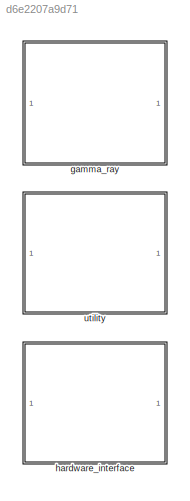
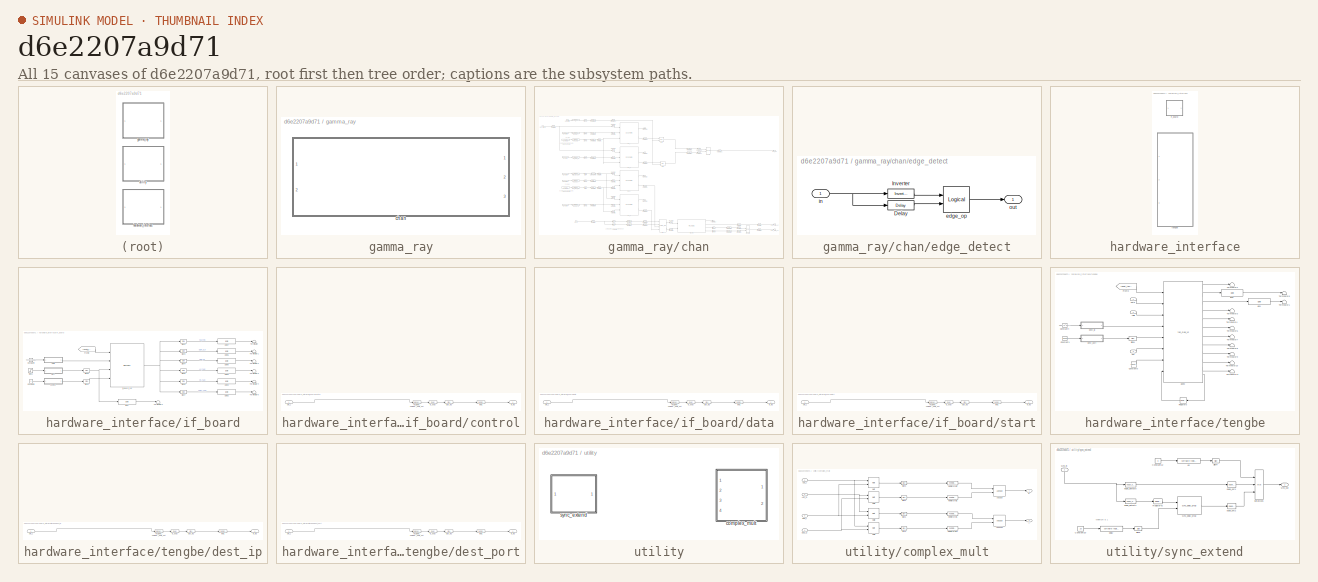
[diagram: thumbnail index - all 15 canvases of the model, root first then tree order]
MODEL slx_d6e2207a9d71
KIND library
BLOCK [SubSystem] gamma_ray
  FunctionWithSeparateData = off
  MaskHideContents = off
  MinAlgLoopOccurrences = off
  Opaque = off
  Ports = []
  PropExecContextOutsideSubsystem = off
  RTWSystemCode = Auto
  RequestExecContextInheritance = off
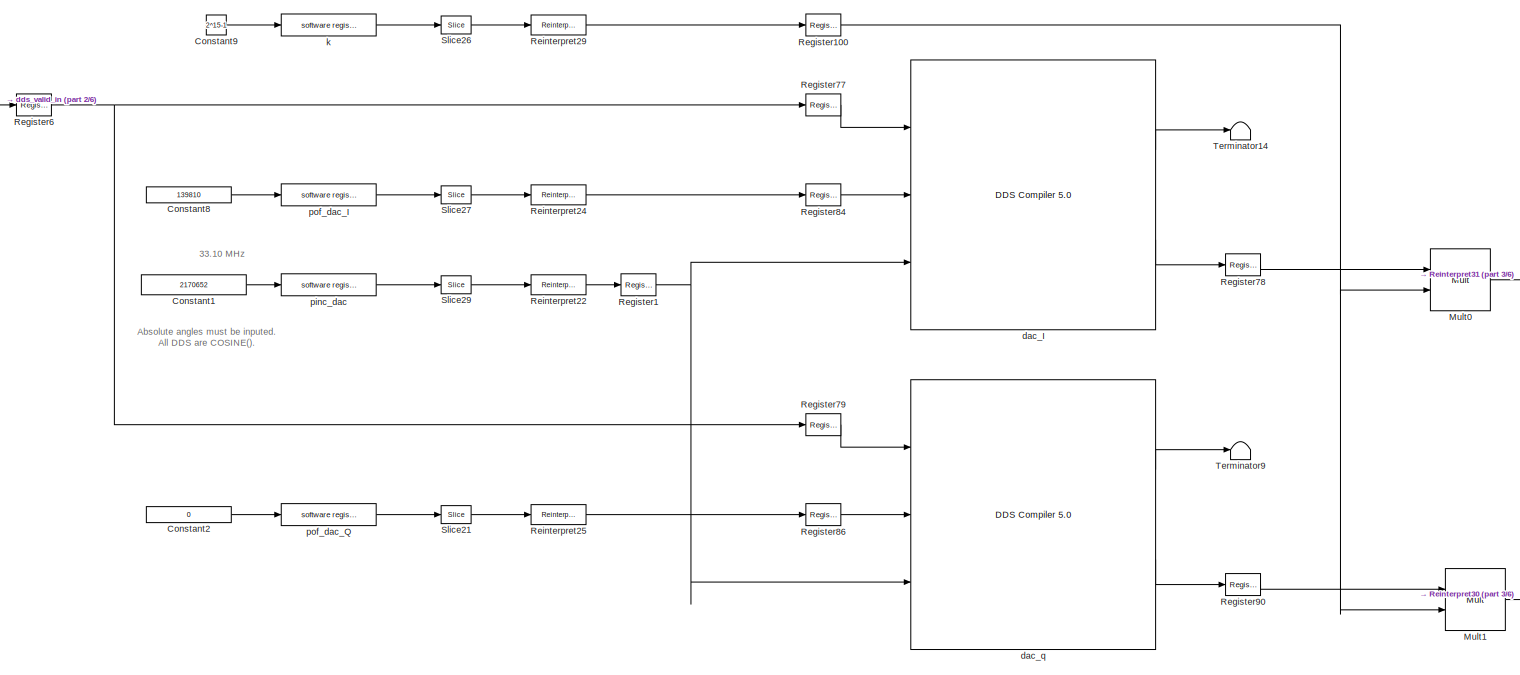
[diagram: gamma_ray/chan - part 1/6, top left region]
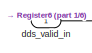
[diagram: gamma_ray/chan - part 2/6, top left region]
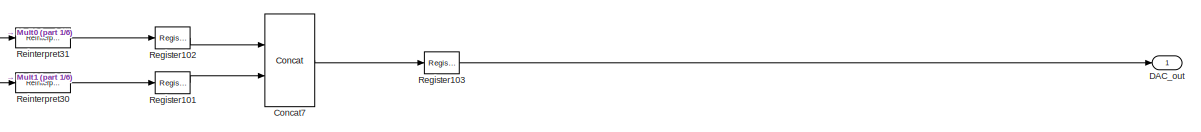
[diagram: gamma_ray/chan - part 3/6, top right region]
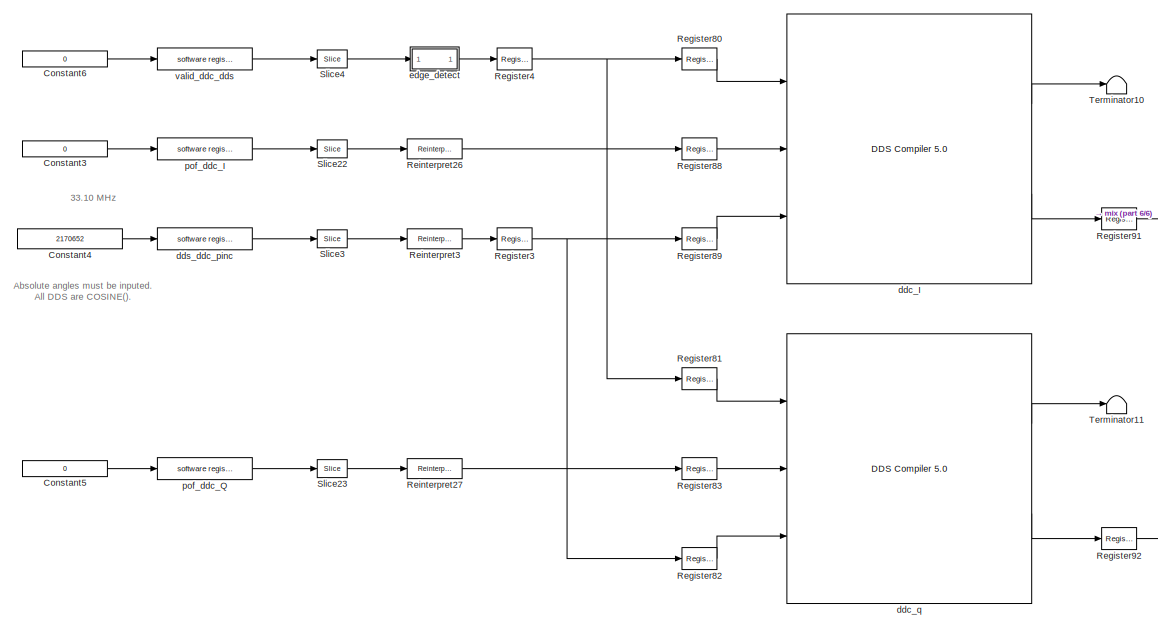
[diagram: gamma_ray/chan - part 4/6, middle left region]
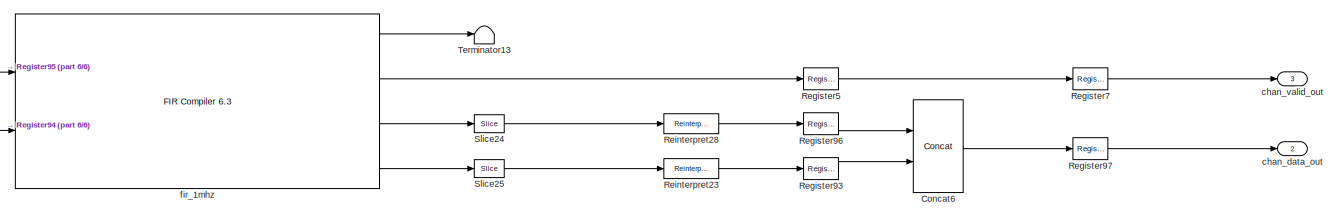
[diagram: gamma_ray/chan - part 5/6, bottom right region]
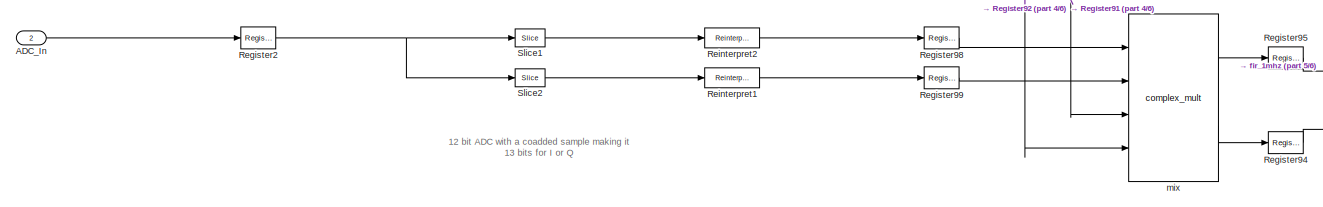
[diagram: gamma_ray/chan - part 6/6, bottom center region]
BLOCK [SubSystem] gamma_ray/chan
  FunctionWithSeparateData = off
  MaskHideContents = off
  MinAlgLoopOccurrences = off
  Opaque = off
  Ports = [2, 3]
  PropExecContextOutsideSubsystem = off
  RTWSystemCode = Auto
  RequestExecContextInheritance = off
BLOCK [Inport] gamma_ray/chan/ADC_In
  IconDisplay = Port number
  Port = 2
BLOCK [Reference] gamma_ray/chan/Concat6  REF=xbsIndex_r4/Concat
  Ports = [2, 1]
  SourceBlock = xbsIndex_r4/Concat
  SourceType = Xilinx Bus Concatenator Block
  block_type = concat
  dbl_ovrd = off
  has_advanced_control = 0
  infoedit = Concatenates two or more inputs.  Output will be cast to an unsigned value with the binary point at zero.
  num_inputs = 2
  sg_icon_stat = 50,93,2,1,white,blue,0,16398980,right,,[ ],[ ]
  sg_mask_display = fprintf('','COMMENT: begin icon graphics');\npatch([0 50 50 0 0 ],[0 0 93 93 0 ],[0.77 0.82 0.91 ]);\nplot([0 50 50 0 0 ],[0 0 93 93 0 ]);\npatch([9.425 19.54 26.54 33.54 40.54 26.54 16.425 9.425 ],[53.77 53.77 60.77 53.77 60.77 60.77 60.77 53.77 ],[1 1 1 ]);\npatch([16.425 26.54 19.54 9.425 16.425 ],[46.77 46.77 53.77 53.77 46.77 ],[0.931 0.946 0.973 ]);\npatch([9.425 19.54 26.54 16.425 9.425 ],[39.77...<+420ch>
  sggui_pos = 37,14,328,208
BLOCK [Reference] gamma_ray/chan/Concat7  REF=xbsIndex_r4/Concat
  Ports = [2, 1]
  SourceBlock = xbsIndex_r4/Concat
  SourceType = Xilinx Bus Concatenator Block
  block_type = concat
  dbl_ovrd = off
  has_advanced_control = 0
  infoedit = Concatenates two or more inputs.  Output will be cast to an unsigned value with the binary point at zero.
  num_inputs = 2
  sg_icon_stat = 50,93,2,1,white,blue,0,16398980,right,,[ ],[ ]
  sg_mask_display = fprintf('','COMMENT: begin icon graphics');\npatch([0 50 50 0 0 ],[0 0 93 93 0 ],[0.77 0.82 0.91 ]);\nplot([0 50 50 0 0 ],[0 0 93 93 0 ]);\npatch([9.425 19.54 26.54 33.54 40.54 26.54 16.425 9.425 ],[53.77 53.77 60.77 53.77 60.77 60.77 60.77 53.77 ],[1 1 1 ]);\npatch([16.425 26.54 19.54 9.425 16.425 ],[46.77 46.77 53.77 53.77 46.77 ],[0.931 0.946 0.973 ]);\npatch([9.425 19.54 26.54 16.425 9.425 ],[39.77...<+420ch>
  sggui_pos = 37,14,328,208
BLOCK [Constant] gamma_ray/chan/Constant1
  Value = 2170652
BLOCK [Constant] gamma_ray/chan/Constant2
  Value = 0
BLOCK [Constant] gamma_ray/chan/Constant3
  Value = 0
BLOCK [Constant] gamma_ray/chan/Constant4
  Value = 2170652
BLOCK [Constant] gamma_ray/chan/Constant5
  Value = 0
BLOCK [Constant] gamma_ray/chan/Constant6
  Value = 0
BLOCK [Constant] gamma_ray/chan/Constant8
  Value = 139810
BLOCK [Constant] gamma_ray/chan/Constant9
  Value = 2^15-1
BLOCK [Outport] gamma_ray/chan/DAC_out
  IconDisplay = Port number
BLOCK [Reference] gamma_ray/chan/Mult0  REF=xbsIndex_r4/Mult
  Ports = [2, 1]
  SourceBlock = xbsIndex_r4/Mult
  SourceType = Xilinx Multiplier Block
  arith_type = Signed  (2's comp)
  bin_pt = 12
  block_type = mult
  dbl_ovrd = off
  en = off
  has_advanced_control = 0
  infoedit = Hardware notes: To check for the optimum internal pipeline stages of the dedicated multiplier you must select 'Test for optimum pipelining'.<br><br>Optimization Goal: For implementation into device fabric (LUTs), the Speed or Area optimization will take effect only if it's supported by IP for the particular device family. Otherwise, the results will be identical regardless of the selection.  <repeated x6 — deduplicated; at blocks: Mult0, Mult1, Mult, Mult2, Mult3>
  latency = 4
  n_bits = 13
  opt = Area
  optimum_pipeline = on
  overflow = Wrap
  pipeline = on
  placement_style = Triangular
  precision = User Defined
  quantization = Truncate
  sg_icon_stat = 60,62,2,1,white,blue,0,d1df6e1f,right,,[ ],[ ]
  sg_mask_display = fprintf('','COMMENT: begin icon graphics');\npatch([0 60 60 0 0 ],[0 0 62 62 0 ],[0.77 0.82 0.91 ]);\nplot([0 60 60 0 0 ],[0 0 62 62 0 ]);\npatch([12.2 23.76 31.76 39.76 47.76 31.76 20.2 12.2 ],[39.88 39.88 47.88 39.88 47.88 47.88 47.88 39.88 ],[1 1 1 ]);\npatch([20.2 31.76 23.76 12.2 20.2 ],[31.88 31.88 39.88 39.88 31.88 ],[0.931 0.946 0.973 ]);\npatch([12.2 23.76 31.76 20.2 12.2 ],[23.88 23.88 31.88 ...<+498ch>
  sggui_pos = 61,104,416,660
  use_behavioral_HDL = off
  use_embedded = off
  use_rpm = on
  xl_area = [0,0,0,0,0,0,0]
  xl_use_area = off
BLOCK [Reference] gamma_ray/chan/Mult1  REF=xbsIndex_r4/Mult
  Ports = [2, 1]
  SourceBlock = xbsIndex_r4/Mult
  SourceType = Xilinx Multiplier Block
  arith_type = Signed  (2's comp)
  bin_pt = 12
  block_type = mult
  dbl_ovrd = off
  en = off
  has_advanced_control = 0
  latency = 4
  n_bits = 13
  opt = Area
  optimum_pipeline = on
  overflow = Wrap
  pipeline = on
  placement_style = Triangular
  precision = User Defined
  quantization = Truncate
  sg_icon_stat = 60,62,2,1,white,blue,0,d1df6e1f,right,,[ ],[ ]
  sg_mask_display = fprintf('','COMMENT: begin icon graphics');\npatch([0 60 60 0 0 ],[0 0 62 62 0 ],[0.77 0.82 0.91 ]);\nplot([0 60 60 0 0 ],[0 0 62 62 0 ]);\npatch([12.2 23.76 31.76 39.76 47.76 31.76 20.2 12.2 ],[39.88 39.88 47.88 39.88 47.88 47.88 47.88 39.88 ],[1 1 1 ]);\npatch([20.2 31.76 23.76 12.2 20.2 ],[31.88 31.88 39.88 39.88 31.88 ],[0.931 0.946 0.973 ]);\npatch([12.2 23.76 31.76 20.2 12.2 ],[23.88 23.88 31.88 ...<+498ch>
  sggui_pos = 53,74,416,660
  use_behavioral_HDL = off
  use_embedded = off
  use_rpm = on
  xl_area = [0,0,0,0,0,0,0]
  xl_use_area = off
BLOCK [Reference] gamma_ray/chan/Register1  REF=xbsIndex_r4/Register
  Ports = [1, 1]
  SourceBlock = xbsIndex_r4/Register
  SourceType = Xilinx Register Block
  block_type = register
  dbl_ovrd = off
  en = off
  has_advanced_control = 0
  init = 0
  rst = off
  sg_icon_stat = 35,22,1,1,white,blue,0,c80657c5,right,,[ ],[ ]
  sg_mask_display = fprintf('','COMMENT: begin icon graphics');\npatch([0 35 35 0 0 ],[0 0 22 22 0 ],[0.77 0.82 0.91 ]);\nplot([0 35 35 0 0 ],[0 0 22 22 0 ]);\npatch([10.325 14.66 17.66 20.66 23.66 17.66 13.325 10.325 ],[14.33 14.33 17.33 14.33 17.33 17.33 17.33 14.33 ],[1 1 1 ]);\npatch([13.325 17.66 14.66 10.325 13.325 ],[11.33 11.33 14.33 14.33 11.33 ],[0.931 0.946 0.973 ]);\npatch([10.325 14.66 17.66 13.325 10.325 ],[...<+405ch>  <repeated x33 — deduplicated; at blocks: Register1, Register100, Register101, Register102, Register103, Register2, Register3, Register4, Register5, Register6, Register7, Register77, Register78, Register79, Register80, Register81, +17 more>
  sggui_pos = 2930,550,416,203
  xl_area = [0,0,0,0,0,0,0]
  xl_use_area = off
BLOCK [Reference] gamma_ray/chan/Register100  REF=xbsIndex_r4/Register
  Ports = [1, 1]
  SourceBlock = xbsIndex_r4/Register
  SourceType = Xilinx Register Block
  block_type = register
  dbl_ovrd = off
  en = off
  has_advanced_control = 0
  init = 0
  rst = off
  sg_icon_stat = 35,22,1,1,white,blue,0,c80657c5,right,,[ ],[ ]
  sggui_pos = 2922,520,416,203
  xl_area = [0,0,0,0,0,0,0]
  xl_use_area = off
BLOCK [Reference] gamma_ray/chan/Register101  REF=xbsIndex_r4/Register
  Ports = [1, 1]
  SourceBlock = xbsIndex_r4/Register
  SourceType = Xilinx Register Block
  block_type = register
  dbl_ovrd = off
  en = off
  has_advanced_control = 0
  init = 0
  rst = off
  sg_icon_stat = 35,22,1,1,white,blue,0,c80657c5,right,,[ ],[ ]
  sggui_pos = 2922,520,416,203
  xl_area = [0,0,0,0,0,0,0]
  xl_use_area = off
BLOCK [Reference] gamma_ray/chan/Register102  REF=xbsIndex_r4/Register
  Ports = [1, 1]
  SourceBlock = xbsIndex_r4/Register
  SourceType = Xilinx Register Block
  block_type = register
  dbl_ovrd = off
  en = off
  has_advanced_control = 0
  init = 0
  rst = off
  sg_icon_stat = 35,22,1,1,white,blue,0,c80657c5,right,,[ ],[ ]
  sggui_pos = 2922,520,416,203
  xl_area = [0,0,0,0,0,0,0]
  xl_use_area = off
BLOCK [Reference] gamma_ray/chan/Register103  REF=xbsIndex_r4/Register
  Ports = [1, 1]
  SourceBlock = xbsIndex_r4/Register
  SourceType = Xilinx Register Block
  block_type = register
  dbl_ovrd = off
  en = off
  has_advanced_control = 0
  init = 0
  rst = off
  sg_icon_stat = 35,22,1,1,white,blue,0,c80657c5,right,,[ ],[ ]
  sggui_pos = 2922,520,416,203
  xl_area = [0,0,0,0,0,0,0]
  xl_use_area = off
BLOCK [Reference] gamma_ray/chan/Register2  REF=xbsIndex_r4/Register
  Ports = [1, 1]
  SourceBlock = xbsIndex_r4/Register
  SourceType = Xilinx Register Block
  block_type = register
  dbl_ovrd = off
  en = off
  has_advanced_control = 0
  init = 0
  rst = off
  sg_icon_stat = 35,22,1,1,white,blue,0,c80657c5,right,,[ ],[ ]
  sggui_pos = 2922,520,416,203
  xl_area = [0,0,0,0,0,0,0]
  xl_use_area = off
BLOCK [Reference] gamma_ray/chan/Register3  REF=xbsIndex_r4/Register
  Ports = [1, 1]
  SourceBlock = xbsIndex_r4/Register
  SourceType = Xilinx Register Block
  block_type = register
  dbl_ovrd = off
  en = off
  has_advanced_control = 0
  init = 0
  rst = off
  sg_icon_stat = 35,22,1,1,white,blue,0,c80657c5,right,,[ ],[ ]
  sggui_pos = 2922,520,416,203
  xl_area = [0,0,0,0,0,0,0]
  xl_use_area = off
BLOCK [Reference] gamma_ray/chan/Register4  REF=xbsIndex_r4/Register
  Ports = [1, 1]
  SourceBlock = xbsIndex_r4/Register
  SourceType = Xilinx Register Block
  block_type = register
  dbl_ovrd = off
  en = off
  has_advanced_control = 0
  init = 0
  rst = off
  sg_icon_stat = 35,22,1,1,white,blue,0,c80657c5,right,,[ ],[ ]
  sggui_pos = 2922,520,416,203
  xl_area = [0,0,0,0,0,0,0]
  xl_use_area = off
BLOCK [Reference] gamma_ray/chan/Register5  REF=xbsIndex_r4/Register
  Ports = [1, 1]
  SourceBlock = xbsIndex_r4/Register
  SourceType = Xilinx Register Block
  block_type = register
  dbl_ovrd = off
  en = off
  has_advanced_control = 0
  init = 0
  rst = off
  sg_icon_stat = 35,22,1,1,white,blue,0,c80657c5,right,,[ ],[ ]
  sggui_pos = 2922,520,416,203
  xl_area = [0,0,0,0,0,0,0]
  xl_use_area = off
BLOCK [Reference] gamma_ray/chan/Register6  REF=xbsIndex_r4/Register
  Ports = [1, 1]
  SourceBlock = xbsIndex_r4/Register
  SourceType = Xilinx Register Block
  block_type = register
  dbl_ovrd = off
  en = off
  has_advanced_control = 0
  init = 0
  rst = off
  sg_icon_stat = 35,22,1,1,white,blue,0,c80657c5,right,,[ ],[ ]
  sggui_pos = 2922,520,416,203
  xl_area = [0,0,0,0,0,0,0]
  xl_use_area = off
BLOCK [Reference] gamma_ray/chan/Register7  REF=xbsIndex_r4/Register
  Ports = [1, 1]
  SourceBlock = xbsIndex_r4/Register
  SourceType = Xilinx Register Block
  block_type = register
  dbl_ovrd = off
  en = off
  has_advanced_control = 0
  init = 0
  rst = off
  sg_icon_stat = 35,22,1,1,white,blue,0,c80657c5,right,,[ ],[ ]
  sggui_pos = 2922,520,416,203
  xl_area = [0,0,0,0,0,0,0]
  xl_use_area = off
BLOCK [Reference] gamma_ray/chan/Register77  REF=xbsIndex_r4/Register
  Ports = [1, 1]
  SourceBlock = xbsIndex_r4/Register
  SourceType = Xilinx Register Block
  block_type = register
  dbl_ovrd = off
  en = off
  has_advanced_control = 0
  init = 0
  rst = off
  sg_icon_stat = 35,22,1,1,white,blue,0,c80657c5,right,,[ ],[ ]
  sggui_pos = 2922,520,416,203
  xl_area = [0,0,0,0,0,0,0]
  xl_use_area = off
BLOCK [Reference] gamma_ray/chan/Register78  REF=xbsIndex_r4/Register
  Ports = [1, 1]
  SourceBlock = xbsIndex_r4/Register
  SourceType = Xilinx Register Block
  block_type = register
  dbl_ovrd = off
  en = off
  has_advanced_control = 0
  init = 0
  rst = off
  sg_icon_stat = 35,22,1,1,white,blue,0,c80657c5,right,,[ ],[ ]
  sggui_pos = 2922,520,416,203
  xl_area = [0,0,0,0,0,0,0]
  xl_use_area = off
BLOCK [Reference] gamma_ray/chan/Register79  REF=xbsIndex_r4/Register
  Ports = [1, 1]
  SourceBlock = xbsIndex_r4/Register
  SourceType = Xilinx Register Block
  block_type = register
  dbl_ovrd = off
  en = off
  has_advanced_control = 0
  init = 0
  rst = off
  sg_icon_stat = 35,22,1,1,white,blue,0,c80657c5,right,,[ ],[ ]
  sggui_pos = 2922,520,416,203
  xl_area = [0,0,0,0,0,0,0]
  xl_use_area = off
BLOCK [Reference] gamma_ray/chan/Register80  REF=xbsIndex_r4/Register
  Ports = [1, 1]
  SourceBlock = xbsIndex_r4/Register
  SourceType = Xilinx Register Block
  block_type = register
  dbl_ovrd = off
  en = off
  has_advanced_control = 0
  init = 0
  rst = off
  sg_icon_stat = 35,22,1,1,white,blue,0,c80657c5,right,,[ ],[ ]
  sggui_pos = 2922,520,416,203
  xl_area = [0,0,0,0,0,0,0]
  xl_use_area = off
BLOCK [Reference] gamma_ray/chan/Register81  REF=xbsIndex_r4/Register
  Ports = [1, 1]
  SourceBlock = xbsIndex_r4/Register
  SourceType = Xilinx Register Block
  block_type = register
  dbl_ovrd = off
  en = off
  has_advanced_control = 0
  init = 0
  rst = off
  sg_icon_stat = 35,22,1,1,white,blue,0,c80657c5,right,,[ ],[ ]
  sggui_pos = 2922,520,416,203
  xl_area = [0,0,0,0,0,0,0]
  xl_use_area = off
BLOCK [Reference] gamma_ray/chan/Register82  REF=xbsIndex_r4/Register
  Ports = [1, 1]
  SourceBlock = xbsIndex_r4/Register
  SourceType = Xilinx Register Block
  block_type = register
  dbl_ovrd = off
  en = off
  has_advanced_control = 0
  init = 0
  rst = off
  sg_icon_stat = 35,22,1,1,white,blue,0,c80657c5,right,,[ ],[ ]
  sggui_pos = 2922,520,416,203
  xl_area = [0,0,0,0,0,0,0]
  xl_use_area = off
BLOCK [Reference] gamma_ray/chan/Register83  REF=xbsIndex_r4/Register
  Ports = [1, 1]
  SourceBlock = xbsIndex_r4/Register
  SourceType = Xilinx Register Block
  block_type = register
  dbl_ovrd = off
  en = off
  has_advanced_control = 0
  init = 0
  rst = off
  sg_icon_stat = 35,22,1,1,white,blue,0,c80657c5,right,,[ ],[ ]
  sggui_pos = 2922,520,416,203
  xl_area = [0,0,0,0,0,0,0]
  xl_use_area = off
BLOCK [Reference] gamma_ray/chan/Register84  REF=xbsIndex_r4/Register
  Ports = [1, 1]
  SourceBlock = xbsIndex_r4/Register
  SourceType = Xilinx Register Block
  block_type = register
  dbl_ovrd = off
  en = off
  has_advanced_control = 0
  init = 0
  rst = off
  sg_icon_stat = 35,22,1,1,white,blue,0,c80657c5,right,,[ ],[ ]
  sggui_pos = 2922,520,416,203
  xl_area = [0,0,0,0,0,0,0]
  xl_use_area = off
BLOCK [Reference] gamma_ray/chan/Register86  REF=xbsIndex_r4/Register
  Ports = [1, 1]
  SourceBlock = xbsIndex_r4/Register
  SourceType = Xilinx Register Block
  block_type = register
  dbl_ovrd = off
  en = off
  has_advanced_control = 0
  init = 0
  rst = off
  sg_icon_stat = 35,22,1,1,white,blue,0,c80657c5,right,,[ ],[ ]
  sggui_pos = 2922,520,416,203
  xl_area = [0,0,0,0,0,0,0]
  xl_use_area = off
BLOCK [Reference] gamma_ray/chan/Register88  REF=xbsIndex_r4/Register
  Ports = [1, 1]
  SourceBlock = xbsIndex_r4/Register
  SourceType = Xilinx Register Block
  block_type = register
  dbl_ovrd = off
  en = off
  has_advanced_control = 0
  init = 0
  rst = off
  sg_icon_stat = 35,22,1,1,white,blue,0,c80657c5,right,,[ ],[ ]
  sggui_pos = 2922,520,416,203
  xl_area = [0,0,0,0,0,0,0]
  xl_use_area = off
BLOCK [Reference] gamma_ray/chan/Register89  REF=xbsIndex_r4/Register
  Ports = [1, 1]
  SourceBlock = xbsIndex_r4/Register
  SourceType = Xilinx Register Block
  block_type = register
  dbl_ovrd = off
  en = off
  has_advanced_control = 0
  init = 0
  rst = off
  sg_icon_stat = 35,22,1,1,white,blue,0,c80657c5,right,,[ ],[ ]
  sggui_pos = 2922,520,416,203
  xl_area = [0,0,0,0,0,0,0]
  xl_use_area = off
BLOCK [Reference] gamma_ray/chan/Register90  REF=xbsIndex_r4/Register
  Ports = [1, 1]
  SourceBlock = xbsIndex_r4/Register
  SourceType = Xilinx Register Block
  block_type = register
  dbl_ovrd = off
  en = off
  has_advanced_control = 0
  init = 0
  rst = off
  sg_icon_stat = 35,22,1,1,white,blue,0,c80657c5,right,,[ ],[ ]
  sggui_pos = 2922,520,416,203
  xl_area = [0,0,0,0,0,0,0]
  xl_use_area = off
BLOCK [Reference] gamma_ray/chan/Register91  REF=xbsIndex_r4/Register
  Ports = [1, 1]
  SourceBlock = xbsIndex_r4/Register
  SourceType = Xilinx Register Block
  block_type = register
  dbl_ovrd = off
  en = off
  has_advanced_control = 0
  init = 0
  rst = off
  sg_icon_stat = 35,22,1,1,white,blue,0,c80657c5,right,,[ ],[ ]
  sggui_pos = 2922,520,416,203
  xl_area = [0,0,0,0,0,0,0]
  xl_use_area = off
BLOCK [Reference] gamma_ray/chan/Register92  REF=xbsIndex_r4/Register
  Ports = [1, 1]
  SourceBlock = xbsIndex_r4/Register
  SourceType = Xilinx Register Block
  block_type = register
  dbl_ovrd = off
  en = off
  has_advanced_control = 0
  init = 0
  rst = off
  sg_icon_stat = 35,22,1,1,white,blue,0,c80657c5,right,,[ ],[ ]
  sggui_pos = 2922,520,416,203
  xl_area = [0,0,0,0,0,0,0]
  xl_use_area = off
BLOCK [Reference] gamma_ray/chan/Register93  REF=xbsIndex_r4/Register
  Ports = [1, 1]
  SourceBlock = xbsIndex_r4/Register
  SourceType = Xilinx Register Block
  block_type = register
  dbl_ovrd = off
  en = off
  has_advanced_control = 0
  init = 0
  rst = off
  sg_icon_stat = 35,22,1,1,white,blue,0,c80657c5,right,,[ ],[ ]
  sggui_pos = 2922,520,416,203
  xl_area = [0,0,0,0,0,0,0]
  xl_use_area = off
BLOCK [Reference] gamma_ray/chan/Register94  REF=xbsIndex_r4/Register
  Ports = [1, 1]
  SourceBlock = xbsIndex_r4/Register
  SourceType = Xilinx Register Block
  block_type = register
  dbl_ovrd = off
  en = off
  has_advanced_control = 0
  init = 0
  rst = off
  sg_icon_stat = 35,22,1,1,white,blue,0,c80657c5,right,,[ ],[ ]
  sggui_pos = 2922,520,416,203
  xl_area = [0,0,0,0,0,0,0]
  xl_use_area = off
BLOCK [Reference] gamma_ray/chan/Register95  REF=xbsIndex_r4/Register
  Ports = [1, 1]
  SourceBlock = xbsIndex_r4/Register
  SourceType = Xilinx Register Block
  block_type = register
  dbl_ovrd = off
  en = off
  has_advanced_control = 0
  init = 0
  rst = off
  sg_icon_stat = 35,22,1,1,white,blue,0,c80657c5,right,,[ ],[ ]
  sggui_pos = 2922,520,416,203
  xl_area = [0,0,0,0,0,0,0]
  xl_use_area = off
BLOCK [Reference] gamma_ray/chan/Register96  REF=xbsIndex_r4/Register
  Ports = [1, 1]
  SourceBlock = xbsIndex_r4/Register
  SourceType = Xilinx Register Block
  block_type = register
  dbl_ovrd = off
  en = off
  has_advanced_control = 0
  init = 0
  rst = off
  sg_icon_stat = 35,22,1,1,white,blue,0,c80657c5,right,,[ ],[ ]
  sggui_pos = 2922,520,416,203
  xl_area = [0,0,0,0,0,0,0]
  xl_use_area = off
BLOCK [Reference] gamma_ray/chan/Register97  REF=xbsIndex_r4/Register
  Ports = [1, 1]
  SourceBlock = xbsIndex_r4/Register
  SourceType = Xilinx Register Block
  block_type = register
  dbl_ovrd = off
  en = off
  has_advanced_control = 0
  init = 0
  rst = off
  sg_icon_stat = 35,22,1,1,white,blue,0,c80657c5,right,,[ ],[ ]
  sggui_pos = 2922,520,416,203
  xl_area = [0,0,0,0,0,0,0]
  xl_use_area = off
BLOCK [Reference] gamma_ray/chan/Register98  REF=xbsIndex_r4/Register
  Ports = [1, 1]
  SourceBlock = xbsIndex_r4/Register
  SourceType = Xilinx Register Block
  block_type = register
  dbl_ovrd = off
  en = off
  has_advanced_control = 0
  init = 0
  rst = off
  sg_icon_stat = 35,22,1,1,white,blue,0,c80657c5,right,,[ ],[ ]
  sggui_pos = 2922,520,416,203
  xl_area = [0,0,0,0,0,0,0]
  xl_use_area = off
BLOCK [Reference] gamma_ray/chan/Register99  REF=xbsIndex_r4/Register
  Ports = [1, 1]
  SourceBlock = xbsIndex_r4/Register
  SourceType = Xilinx Register Block
  block_type = register
  dbl_ovrd = off
  en = off
  has_advanced_control = 0
  init = 0
  rst = off
  sg_icon_stat = 35,22,1,1,white,blue,0,c80657c5,right,,[ ],[ ]
  sggui_pos = 2922,520,416,203
  xl_area = [0,0,0,0,0,0,0]
  xl_use_area = off
BLOCK [Reference] gamma_ray/chan/Reinterpret1  REF=xbsIndex_r4/Reinterpret
  Ports = [1, 1]
  SourceBlock = xbsIndex_r4/Reinterpret
  SourceType = Xilinx Type Reinterpreter Block
  arith_type = Signed  (2's comp)
  bin_pt = 11
  block_type = reinterpret
  block_version = 10.1.3
  force_arith_type = on
  force_bin_pt = on
  has_advanced_control = 0
  infoedit = Changes signal type without altering the binary representation.   You can change the signal between signed and unsigned, and relocate the binary point.<br><br>Hardware notes: In hardware this block costs nothing.<br><br>Example:  Suppose the input is 6 bits wide, signed, with 2 fractional bits, and the output is forced to unsigned with 0 fractional bits.  Then an input of -2.0 (1110.00 in binary 2...<+58ch>  <repeated x22 — deduplicated; at blocks: Reinterpret1, Reinterpret2, Reinterpret22, Reinterpret23, Reinterpret24, Reinterpret25, Reinterpret26, Reinterpret27, Reinterpret28, Reinterpret29, Reinterpret3, Reinterpret30, Reinterpret31, reint1, Reinterpret11>
  sg_icon_stat = 55,20,1,1,white,blue,0,6b04d0b0,right,,[ ],[ ]
  sg_mask_display = fprintf('','COMMENT: begin icon graphics');\npatch([0 55 55 0 0 ],[0 0 20 20 0 ],[0.77 0.82 0.91 ]);\nplot([0 55 55 0 0 ],[0 0 20 20 0 ]);\npatch([22.55 25.44 27.44 29.44 31.44 27.44 24.55 22.55 ],[12.22 12.22 14.22 12.22 14.22 14.22 14.22 12.22 ],[1 1 1 ]);\npatch([24.55 27.44 25.44 22.55 24.55 ],[10.22 10.22 12.22 12.22 10.22 ],[0.931 0.946 0.973 ]);\npatch([22.55 25.44 27.44 24.55 22.55 ],[8.22 8.22...<+300ch>  <repeated x17 — deduplicated; at blocks: Reinterpret1, Reinterpret2, Reinterpret22, Reinterpret23, Reinterpret24, Reinterpret25, Reinterpret26, Reinterpret27, Reinterpret28, Reinterpret29, Reinterpret3, Reinterpret30, Reinterpret31, Reinterpret11>
  sggui_pos = 1277,330,364,363
BLOCK [Reference] gamma_ray/chan/Reinterpret2  REF=xbsIndex_r4/Reinterpret
  Ports = [1, 1]
  SourceBlock = xbsIndex_r4/Reinterpret
  SourceType = Xilinx Type Reinterpreter Block
  arith_type = Signed  (2's comp)
  bin_pt = 11
  block_type = reinterpret
  block_version = 10.1.3
  force_arith_type = on
  force_bin_pt = on
  has_advanced_control = 0
  sg_icon_stat = 55,20,1,1,white,blue,0,6b04d0b0,right,,[ ],[ ]
  sggui_pos = 1277,330,364,363
BLOCK [Reference] gamma_ray/chan/Reinterpret22  REF=xbsIndex_r4/Reinterpret
  Ports = [1, 1]
  SourceBlock = xbsIndex_r4/Reinterpret
  SourceType = Xilinx Type Reinterpreter Block
  arith_type = Signed  (2's comp)
  bin_pt = 24
  block_type = reinterpret
  block_version = 10.1.3
  force_arith_type = on
  force_bin_pt = on
  has_advanced_control = 0
  sg_icon_stat = 55,20,1,1,white,blue,0,6b04d0b0,right,,[ ],[ ]
  sggui_pos = 1969,311,364,363
BLOCK [Reference] gamma_ray/chan/Reinterpret23  REF=xbsIndex_r4/Reinterpret
  Ports = [1, 1]
  SourceBlock = xbsIndex_r4/Reinterpret
  SourceType = Xilinx Type Reinterpreter Block
  arith_type = Unsigned
  bin_pt = 0
  block_type = reinterpret
  block_version = 10.1.3
  force_arith_type = on
  force_bin_pt = on
  has_advanced_control = 0
  sg_icon_stat = 55,20,1,1,white,blue,0,6b04d0b0,right,,[ ],[ ]
  sggui_pos = 1261,270,364,363
BLOCK [Reference] gamma_ray/chan/Reinterpret24  REF=xbsIndex_r4/Reinterpret
  Ports = [1, 1]
  SourceBlock = xbsIndex_r4/Reinterpret
  SourceType = Xilinx Type Reinterpreter Block
  arith_type = Signed  (2's comp)
  bin_pt = 24
  block_type = reinterpret
  block_version = 10.1.3
  force_arith_type = on
  force_bin_pt = on
  has_advanced_control = 0
  sg_icon_stat = 55,20,1,1,white,blue,0,6b04d0b0,right,,[ ],[ ]
  sggui_pos = 1969,311,364,363
BLOCK [Reference] gamma_ray/chan/Reinterpret25  REF=xbsIndex_r4/Reinterpret
  Ports = [1, 1]
  SourceBlock = xbsIndex_r4/Reinterpret
  SourceType = Xilinx Type Reinterpreter Block
  arith_type = Signed  (2's comp)
  bin_pt = 24
  block_type = reinterpret
  block_version = 10.1.3
  force_arith_type = on
  force_bin_pt = on
  has_advanced_control = 0
  sg_icon_stat = 55,20,1,1,white,blue,0,6b04d0b0,right,,[ ],[ ]
  sggui_pos = 1969,311,364,363
BLOCK [Reference] gamma_ray/chan/Reinterpret26  REF=xbsIndex_r4/Reinterpret
  Ports = [1, 1]
  SourceBlock = xbsIndex_r4/Reinterpret
  SourceType = Xilinx Type Reinterpreter Block
  arith_type = Signed  (2's comp)
  bin_pt = 24
  block_type = reinterpret
  block_version = 10.1.3
  force_arith_type = on
  force_bin_pt = on
  has_advanced_control = 0
  sg_icon_stat = 55,20,1,1,white,blue,0,6b04d0b0,right,,[ ],[ ]
  sggui_pos = 1977,341,364,363
BLOCK [Reference] gamma_ray/chan/Reinterpret27  REF=xbsIndex_r4/Reinterpret
  Ports = [1, 1]
  SourceBlock = xbsIndex_r4/Reinterpret
  SourceType = Xilinx Type Reinterpreter Block
  arith_type = Signed  (2's comp)
  bin_pt = 24
  block_type = reinterpret
  block_version = 10.1.3
  force_arith_type = on
  force_bin_pt = on
  has_advanced_control = 0
  sg_icon_stat = 55,20,1,1,white,blue,0,6b04d0b0,right,,[ ],[ ]
  sggui_pos = 1969,311,364,363
BLOCK [Reference] gamma_ray/chan/Reinterpret28  REF=xbsIndex_r4/Reinterpret
  Ports = [1, 1]
  SourceBlock = xbsIndex_r4/Reinterpret
  SourceType = Xilinx Type Reinterpreter Block
  arith_type = Unsigned
  bin_pt = 0
  block_type = reinterpret
  block_version = 10.1.3
  force_arith_type = on
  force_bin_pt = on
  has_advanced_control = 0
  sg_icon_stat = 55,20,1,1,white,blue,0,6b04d0b0,right,,[ ],[ ]
  sggui_pos = 1293,390,364,363
BLOCK [Reference] gamma_ray/chan/Reinterpret29  REF=xbsIndex_r4/Reinterpret
  Ports = [1, 1]
  SourceBlock = xbsIndex_r4/Reinterpret
  SourceType = Xilinx Type Reinterpreter Block
  arith_type = Signed  (2's comp)
  bin_pt = 15
  block_type = reinterpret
  block_version = 10.1.3
  force_arith_type = on
  force_bin_pt = on
  has_advanced_control = 0
  sg_icon_stat = 55,20,1,1,white,blue,0,6b04d0b0,right,,[ ],[ ]
  sggui_pos = 1977,341,364,363
BLOCK [Reference] gamma_ray/chan/Reinterpret3  REF=xbsIndex_r4/Reinterpret
  Ports = [1, 1]
  SourceBlock = xbsIndex_r4/Reinterpret
  SourceType = Xilinx Type Reinterpreter Block
  arith_type = Signed  (2's comp)
  bin_pt = 24
  block_type = reinterpret
  block_version = 10.1.3
  force_arith_type = on
  force_bin_pt = on
  has_advanced_control = 0
  sg_icon_stat = 55,20,1,1,white,blue,0,6b04d0b0,right,,[ ],[ ]
  sggui_pos = 1977,341,364,363
BLOCK [Reference] gamma_ray/chan/Reinterpret30  REF=xbsIndex_r4/Reinterpret
  Ports = [1, 1]
  SourceBlock = xbsIndex_r4/Reinterpret
  SourceType = Xilinx Type Reinterpreter Block
  arith_type = Unsigned
  bin_pt = 0
  block_type = reinterpret
  block_version = 10.1.3
  force_arith_type = on
  force_bin_pt = on
  has_advanced_control = 0
  sg_icon_stat = 55,20,1,1,white,blue,0,6b04d0b0,right,,[ ],[ ]
  sggui_pos = 1261,270,364,363
BLOCK [Reference] gamma_ray/chan/Reinterpret31  REF=xbsIndex_r4/Reinterpret
  Ports = [1, 1]
  SourceBlock = xbsIndex_r4/Reinterpret
  SourceType = Xilinx Type Reinterpreter Block
  arith_type = Unsigned
  bin_pt = 0
  block_type = reinterpret
  block_version = 10.1.3
  force_arith_type = on
  force_bin_pt = on
  has_advanced_control = 0
  sg_icon_stat = 55,20,1,1,white,blue,0,6b04d0b0,right,,[ ],[ ]
  sggui_pos = 1251,260,364,363
BLOCK [Reference] gamma_ray/chan/Slice1  REF=xbsIndex_r4/Slice
  Ports = [1, 1]
  SourceBlock = xbsIndex_r4/Slice
  SourceType = Xilinx Bit Slice Extractor Block
  base0 = LSB of Input
  base1 = Binary Point of Input
  bit0 = 13
  bit1 = 2
  block_type = slice
  block_version = 10.1.3
  boolean_output = off
  dbl_ovrd = off
  has_advanced_control = 0
  infoedit = Extracts a given range of bits from each input sample and presents it at the output.  The output type is ordinarily unsigned with binary point at zero, but can be Boolean when the slice is one bit wide.<br><br>Hardware notes: In hardware this block costs nothing.  <repeated x32 — deduplicated; at blocks: Slice1, Slice2, Slice21, Slice22, Slice23, Slice24, Slice25, Slice26, Slice27, Slice29, Slice3, Slice4, Slice0, Slice5, Slice6, Slice7, +2 more>
  mode = Lower Bit Location + Width
  nbits = 13
  sg_icon_stat = 30,18,1,1,white,blue,0,1fd851a7,right,,[ ],[ ]
  sg_mask_display = fprintf('','COMMENT: begin icon graphics');\npatch([0 30 30 0 0 ],[0 0 18 18 0 ],[0.77 0.82 0.91 ]);\nplot([0 30 30 0 0 ],[0 0 18 18 0 ]);\npatch([10.55 13.44 15.44 17.44 19.44 15.44 12.55 10.55 ],[11.22 11.22 13.22 11.22 13.22 13.22 13.22 11.22 ],[1 1 1 ]);\npatch([12.55 15.44 13.44 10.55 12.55 ],[9.22 9.22 11.22 11.22 9.22 ],[0.931 0.946 0.973 ]);\npatch([10.55 13.44 15.44 12.55 10.55 ],[7.22 7.22 9....<+305ch>  <repeated x18 — deduplicated; at blocks: Slice1, Slice2, Slice21, Slice22, Slice23, Slice24, Slice25, Slice26, Slice27, Slice29, Slice3, Slice4, Slice8, Slice5>
  sggui_pos = 966,384,543,482
BLOCK [Reference] gamma_ray/chan/Slice2  REF=xbsIndex_r4/Slice
  Ports = [1, 1]
  SourceBlock = xbsIndex_r4/Slice
  SourceType = Xilinx Bit Slice Extractor Block
  base0 = LSB of Input
  base1 = Binary Point of Input
  bit0 = 0
  bit1 = 2
  block_type = slice
  block_version = 10.1.3
  boolean_output = off
  dbl_ovrd = off
  has_advanced_control = 0
  mode = Lower Bit Location + Width
  nbits = 13
  sg_icon_stat = 30,18,1,1,white,blue,0,1fd851a7,right,,[ ],[ ]
  sggui_pos = 79,164,543,482
BLOCK [Reference] gamma_ray/chan/Slice21  REF=xbsIndex_r4/Slice
  Ports = [1, 1]
  SourceBlock = xbsIndex_r4/Slice
  SourceType = Xilinx Bit Slice Extractor Block
  base0 = LSB of Input
  base1 = MSB of Input
  bit0 = 0
  bit1 = 0
  block_type = slice
  block_version = 10.1.3
  boolean_output = off
  dbl_ovrd = off
  has_advanced_control = 0
  mode = Lower Bit Location + Width
  nbits = 24
  sg_icon_stat = 30,18,1,1,white,blue,0,1fd851a7,right,,[ ],[ ]
  sggui_pos = 49,24,543,482
BLOCK [Reference] gamma_ray/chan/Slice22  REF=xbsIndex_r4/Slice
  Ports = [1, 1]
  SourceBlock = xbsIndex_r4/Slice
  SourceType = Xilinx Bit Slice Extractor Block
  base0 = LSB of Input
  base1 = MSB of Input
  bit0 = 0
  bit1 = 0
  block_type = slice
  block_version = 10.1.3
  boolean_output = off
  dbl_ovrd = off
  has_advanced_control = 0
  mode = Lower Bit Location + Width
  nbits = 24
  sg_icon_stat = 30,18,1,1,white,blue,0,1fd851a7,right,,[ ],[ ]
  sggui_pos = 49,24,543,482
BLOCK [Reference] gamma_ray/chan/Slice23  REF=xbsIndex_r4/Slice
  Ports = [1, 1]
  SourceBlock = xbsIndex_r4/Slice
  SourceType = Xilinx Bit Slice Extractor Block
  base0 = LSB of Input
  base1 = MSB of Input
  bit0 = 0
  bit1 = 0
  block_type = slice
  block_version = 10.1.3
  boolean_output = off
  dbl_ovrd = off
  has_advanced_control = 0
  mode = Lower Bit Location + Width
  nbits = 24
  sg_icon_stat = 30,18,1,1,white,blue,0,1fd851a7,right,,[ ],[ ]
  sggui_pos = 49,24,543,482
BLOCK [Reference] gamma_ray/chan/Slice24  REF=xbsIndex_r4/Slice
  Ports = [1, 1]
  SourceBlock = xbsIndex_r4/Slice
  SourceType = Xilinx Bit Slice Extractor Block
  base0 = Binary Point of Input
  base1 = Binary Point of Input
  bit0 = -18
  bit1 = 2
  block_type = slice
  block_version = 10.1.3
  boolean_output = off
  dbl_ovrd = off
  has_advanced_control = 0
  mode = Two Bit Locations
  nbits = 32
  sg_icon_stat = 30,18,1,1,white,blue,0,1fd851a7,right,,[ ],[ ]
  sggui_pos = 982,444,543,482
BLOCK [Reference] gamma_ray/chan/Slice25  REF=xbsIndex_r4/Slice
  Ports = [1, 1]
  SourceBlock = xbsIndex_r4/Slice
  SourceType = Xilinx Bit Slice Extractor Block
  base0 = Binary Point of Input
  base1 = Binary Point of Input
  bit0 = -18
  bit1 = 2
  block_type = slice
  block_version = 10.1.3
  boolean_output = off
  dbl_ovrd = off
  has_advanced_control = 0
  mode = Two Bit Locations
  nbits = 32
  sg_icon_stat = 30,18,1,1,white,blue,0,1fd851a7,right,,[ ],[ ]
  sggui_pos = 95,224,543,482
BLOCK [Reference] gamma_ray/chan/Slice26  REF=xbsIndex_r4/Slice
  Ports = [1, 1]
  SourceBlock = xbsIndex_r4/Slice
  SourceType = Xilinx Bit Slice Extractor Block
  base0 = LSB of Input
  base1 = MSB of Input
  bit0 = 0
  bit1 = 0
  block_type = slice
  block_version = 10.1.3
  boolean_output = off
  dbl_ovrd = off
  has_advanced_control = 0
  mode = Lower Bit Location + Width
  nbits = 16
  sg_icon_stat = 30,18,1,1,white,blue,0,1fd851a7,right,,[ ],[ ]
  sggui_pos = 57,54,543,482
BLOCK [Reference] gamma_ray/chan/Slice27  REF=xbsIndex_r4/Slice
  Ports = [1, 1]
  SourceBlock = xbsIndex_r4/Slice
  SourceType = Xilinx Bit Slice Extractor Block
  base0 = LSB of Input
  base1 = MSB of Input
  bit0 = 0
  bit1 = 0
  block_type = slice
  block_version = 10.1.3
  boolean_output = off
  dbl_ovrd = off
  has_advanced_control = 0
  mode = Lower Bit Location + Width
  nbits = 24
  sg_icon_stat = 30,18,1,1,white,blue,0,1fd851a7,right,,[ ],[ ]
  sggui_pos = 49,24,543,482
BLOCK [Reference] gamma_ray/chan/Slice29  REF=xbsIndex_r4/Slice
  Ports = [1, 1]
  SourceBlock = xbsIndex_r4/Slice
  SourceType = Xilinx Bit Slice Extractor Block
  base0 = LSB of Input
  base1 = MSB of Input
  bit0 = 0
  bit1 = 0
  block_type = slice
  block_version = 10.1.3
  boolean_output = off
  dbl_ovrd = off
  has_advanced_control = 0
  mode = Lower Bit Location + Width
  nbits = 24
  sg_icon_stat = 30,18,1,1,white,blue,0,1fd851a7,right,,[ ],[ ]
  sggui_pos = 49,24,543,482
BLOCK [Reference] gamma_ray/chan/Slice3  REF=xbsIndex_r4/Slice
  Ports = [1, 1]
  SourceBlock = xbsIndex_r4/Slice
  SourceType = Xilinx Bit Slice Extractor Block
  base0 = LSB of Input
  base1 = MSB of Input
  bit0 = 0
  bit1 = 0
  block_type = slice
  block_version = 10.1.3
  boolean_output = off
  dbl_ovrd = off
  has_advanced_control = 0
  mode = Lower Bit Location + Width
  nbits = 24
  sg_icon_stat = 30,18,1,1,white,blue,0,1fd851a7,right,,[ ],[ ]
  sggui_pos = 49,24,543,482
BLOCK [Reference] gamma_ray/chan/Slice4  REF=xbsIndex_r4/Slice
  Ports = [1, 1]
  SourceBlock = xbsIndex_r4/Slice
  SourceType = Xilinx Bit Slice Extractor Block
  base0 = LSB of Input
  base1 = MSB of Input
  bit0 = 0
  bit1 = 0
  block_type = slice
  block_version = 10.1.3
  boolean_output = on
  dbl_ovrd = off
  has_advanced_control = 0
  mode = Lower Bit Location + Width
  nbits = 24
  sg_icon_stat = 30,18,1,1,white,blue,0,1fd851a7,right,,[ ],[ ]
  sggui_pos = 65,84,543,482
BLOCK [Terminator] gamma_ray/chan/Terminator10
BLOCK [Terminator] gamma_ray/chan/Terminator11
BLOCK [Terminator] gamma_ray/chan/Terminator13
BLOCK [Terminator] gamma_ray/chan/Terminator14
BLOCK [Terminator] gamma_ray/chan/Terminator9
BLOCK [Outport] gamma_ray/chan/chan_data_out
  IconDisplay = Port number
  Port = 2
BLOCK [Outport] gamma_ray/chan/chan_valid_out
  IconDisplay = Port number
  Port = 3
BLOCK [Reference] gamma_ray/chan/dac_I  REF=xbsIndex_r4/DDS Compiler 5.0 
  Ports = [3, 2]
  SourceBlock = xbsIndex_r4/DDS Compiler 5.0
  SourceType = Xilinx DDS Compiler 5.0 Block
  amplitude_mode = Full_Range
  block_type = dds_compiler_v5_0
  channels = 1
  data_has_tlast = Not_Required
  dds_clock_rate = 256
  dsp48_use = Minimal
  dsptool_ready = true
  explicit_period = off
  frequency_resolution = 0.4
  gui_behaviour = Sysgen
  has_aclken = off
  has_advanced_control = 0
  has_aresetn = off
  has_phase_out = off
  has_tready = off
  ip_name = DDS Compiler
  ip_version = 5.0
  ipcore_fpga_part = xlipgetpartsetting(gcb, {'virtex6', 'xc6vlx75t', '-3', 'ff784'})
  ipcore_usecache = true
  ipcore_useipmodelcache = true
  ipcore_verbose = false
  ipcore_xco_need_fpga_part = true
  latency = 8
  latency_configuration = Auto
  m_data_has_tuser = Not_Required
  m_phase_has_tuser = Not_Required
  memory_type = Block_ROM
  negative_cosine = off
  negative_sine = off
  noise_shaping = None
  optimization_goal = Speed
  output_frequency1 = 0
  output_frequency10 = 0
  output_frequency11 = 0
  output_frequency12 = 0
  output_frequency13 = 0
  output_frequency14 = 0
  output_frequency15 = 0
  output_frequency16 = 0
  output_frequency2 = 0
  output_frequency3 = 0
  output_frequency4 = 0
  output_frequency5 = 0
  output_frequency6 = 0
  output_frequency7 = 0
  output_frequency8 = 0
  output_frequency9 = 0
  output_selection = Cosine
  output_width = 13
  parameter_entry = Hardware_Parameters
  partspresent = Phase_Generator_and_SIN_COS_LUT
  period = 1
  phase_increment = Programmable
  phase_offset = Programmable
  phase_offset_angles1 = 0
  phase_offset_angles10 = 0
  phase_offset_angles11 = 0
  phase_offset_angles12 = 0
  phase_offset_angles13 = 0
  phase_offset_angles14 = 0
  phase_offset_angles15 = 0
  phase_offset_angles16 = 0
  phase_offset_angles2 = 0
  phase_offset_angles3 = 0
  phase_offset_angles4 = 0
  phase_offset_angles5 = 0
  phase_offset_angles6 = 0
  phase_offset_angles7 = 0
  phase_offset_angles8 = 0
  phase_offset_angles9 = 0
  phase_width = 24
  pinc1 = '1101000110110'
  pinc10 = '0'
  pinc11 = '0'
  pinc12 = '0'
  pinc13 = '0'
  pinc14 = '0'
  pinc15 = '0'
  pinc16 = '0'
  pinc2 = '0'
  pinc3 = '0'
  pinc4 = '0'
  pinc5 = '0'
  pinc6 = '0'
  pinc7 = '0'
  pinc8 = '0'
  pinc9 = '0'
  poff1 = '0'
  poff10 = '0'
  poff11 = '0'
  poff12 = '0'
  poff13 = '0'
  poff14 = '0'
  poff15 = '0'
  poff16 = '0'
  poff2 = '0'
  poff3 = '0'
  poff4 = '0'
  poff5 = '0'
  poff6 = '0'
  poff7 = '0'
  poff8 = '0'
  poff9 = '0'
  por_mode = false
  port_translation_map = { 'aclken' => 'en', 'aresetn' => 'rst' }
  s_config_sync_mode = On_Vector
  s_phase_has_tuser = Not_Required
  s_phase_tuser_width = 1
  sg_icon_stat = 245,270,3,2,white,blue,0,8f1b352c,right,,[2 2 2 ],[3 3 ]
  sg_mask_display = fprintf('','COMMENT: begin icon graphics');\npatch([0 0 4 4 ],[256 14 14 256 ],[5.466667e-01 5.800000e-01 6.400000e-01 ]);\npatch([241 241 245 245 ],[246 19 19 246 ],[3.233333e-01 3.400000e-01 3.700000e-01 ]);\npatch([4 240 240 4 4 ],[0 0 270 270 0 ],[7.700000e-01 8.200000e-01 9.100000e-01 ]);\nplot([4 240 240 4 4 ],[0 0 270 270 0 ]);\n\n\npatch([44.125 94.7 129.7 164.7 199.7 129.7 79.125 44.125 ],[173.8...<+801ch>
  sggui_pos = 278,86,1318,689
  spurious_free_dynamic_range = 36
  trim_axipin_name = on
  wrapper_available = true
BLOCK [Reference] gamma_ray/chan/dac_q  REF=xbsIndex_r4/DDS Compiler 5.0 
  Ports = [3, 2]
  SourceBlock = xbsIndex_r4/DDS Compiler 5.0
  SourceType = Xilinx DDS Compiler 5.0 Block
  amplitude_mode = Full_Range
  block_type = dds_compiler_v5_0
  channels = 1
  data_has_tlast = Not_Required
  dds_clock_rate = 256
  dsp48_use = Minimal
  dsptool_ready = true
  explicit_period = off
  frequency_resolution = 0.4
  gui_behaviour = Sysgen
  has_aclken = off
  has_advanced_control = 0
  has_aresetn = off
  has_phase_out = off
  has_tready = off
  ip_name = DDS Compiler
  ip_version = 5.0
  ipcore_fpga_part = xlipgetpartsetting(gcb, {'virtex6', 'xc6vlx75t', '-3', 'ff784'})
  ipcore_usecache = true
  ipcore_useipmodelcache = true
  ipcore_verbose = false
  ipcore_xco_need_fpga_part = true
  latency = 8
  latency_configuration = Auto
  m_data_has_tuser = Not_Required
  m_phase_has_tuser = Not_Required
  memory_type = Block_ROM
  negative_cosine = off
  negative_sine = off
  noise_shaping = None
  optimization_goal = Speed
  output_frequency1 = 0
  output_frequency10 = 0
  output_frequency11 = 0
  output_frequency12 = 0
  output_frequency13 = 0
  output_frequency14 = 0
  output_frequency15 = 0
  output_frequency16 = 0
  output_frequency2 = 0
  output_frequency3 = 0
  output_frequency4 = 0
  output_frequency5 = 0
  output_frequency6 = 0
  output_frequency7 = 0
  output_frequency8 = 0
  output_frequency9 = 0
  output_selection = Sine
  output_width = 13
  parameter_entry = Hardware_Parameters
  partspresent = Phase_Generator_and_SIN_COS_LUT
  period = 1
  phase_increment = Programmable
  phase_offset = Programmable
  phase_offset_angles1 = 0
  phase_offset_angles10 = 0
  phase_offset_angles11 = 0
  phase_offset_angles12 = 0
  phase_offset_angles13 = 0
  phase_offset_angles14 = 0
  phase_offset_angles15 = 0
  phase_offset_angles16 = 0
  phase_offset_angles2 = 0
  phase_offset_angles3 = 0
  phase_offset_angles4 = 0
  phase_offset_angles5 = 0
  phase_offset_angles6 = 0
  phase_offset_angles7 = 0
  phase_offset_angles8 = 0
  phase_offset_angles9 = 0
  phase_width = 24
  pinc1 = '1101000110110'
  pinc10 = '0'
  pinc11 = '0'
  pinc12 = '0'
  pinc13 = '0'
  pinc14 = '0'
  pinc15 = '0'
  pinc16 = '0'
  pinc2 = '0'
  pinc3 = '0'
  pinc4 = '0'
  pinc5 = '0'
  pinc6 = '0'
  pinc7 = '0'
  pinc8 = '0'
  pinc9 = '0'
  poff1 = '0'
  poff10 = '0'
  poff11 = '0'
  poff12 = '0'
  poff13 = '0'
  poff14 = '0'
  poff15 = '0'
  poff16 = '0'
  poff2 = '0'
  poff3 = '0'
  poff4 = '0'
  poff5 = '0'
  poff6 = '0'
  poff7 = '0'
  poff8 = '0'
  poff9 = '0'
  por_mode = false
  port_translation_map = { 'aclken' => 'en', 'aresetn' => 'rst' }
  s_config_sync_mode = On_Vector
  s_phase_has_tuser = Not_Required
  s_phase_tuser_width = 1
  sg_icon_stat = 245,270,3,2,white,blue,0,3431661a,right,,[2 2 2 ],[3 3 ]
  sg_mask_display = fprintf('','COMMENT: begin icon graphics');\npatch([0 0 4 4 ],[256 14 14 256 ],[5.466667e-01 5.800000e-01 6.400000e-01 ]);\npatch([241 241 245 245 ],[246 19 19 246 ],[3.233333e-01 3.400000e-01 3.700000e-01 ]);\npatch([4 240 240 4 4 ],[0 0 270 270 0 ],[7.700000e-01 8.200000e-01 9.100000e-01 ]);\nplot([4 240 240 4 4 ],[0 0 270 270 0 ]);\n\n\npatch([44.125 94.7 129.7 164.7 199.7 129.7 79.125 44.125 ],[173.8...<+799ch>
  sggui_pos = 278,86,1318,689
  spurious_free_dynamic_range = 36
  trim_axipin_name = on
  wrapper_available = true
BLOCK [Reference] gamma_ray/chan/ddc_I  REF=xbsIndex_r4/DDS Compiler 5.0 
  Ports = [3, 2]
  SourceBlock = xbsIndex_r4/DDS Compiler 5.0
  SourceType = Xilinx DDS Compiler 5.0 Block
  amplitude_mode = Full_Range
  block_type = dds_compiler_v5_0
  channels = 1
  data_has_tlast = Not_Required
  dds_clock_rate = 256
  dsp48_use = Minimal
  dsptool_ready = true
  explicit_period = off
  frequency_resolution = 0.4
  gui_behaviour = Sysgen
  has_aclken = off
  has_advanced_control = 0
  has_aresetn = off
  has_phase_out = off
  has_tready = off
  ip_name = DDS Compiler
  ip_version = 5.0
  ipcore_fpga_part = xlipgetpartsetting(gcb, {'virtex6', 'xc6vlx75t', '-3', 'ff784'})
  ipcore_usecache = true
  ipcore_useipmodelcache = true
  ipcore_verbose = false
  ipcore_xco_need_fpga_part = true
  latency = 8
  latency_configuration = Auto
  m_data_has_tuser = Not_Required
  m_phase_has_tuser = Not_Required
  memory_type = Block_ROM
  negative_cosine = off
  negative_sine = off
  noise_shaping = None
  optimization_goal = Speed
  output_frequency1 = 0
  output_frequency10 = 0
  output_frequency11 = 0
  output_frequency12 = 0
  output_frequency13 = 0
  output_frequency14 = 0
  output_frequency15 = 0
  output_frequency16 = 0
  output_frequency2 = 0
  output_frequency3 = 0
  output_frequency4 = 0
  output_frequency5 = 0
  output_frequency6 = 0
  output_frequency7 = 0
  output_frequency8 = 0
  output_frequency9 = 0
  output_selection = Cosine
  output_width = 13
  parameter_entry = Hardware_Parameters
  partspresent = Phase_Generator_and_SIN_COS_LUT
  period = 1
  phase_increment = Programmable
  phase_offset = Programmable
  phase_offset_angles1 = 0
  phase_offset_angles10 = 0
  phase_offset_angles11 = 0
  phase_offset_angles12 = 0
  phase_offset_angles13 = 0
  phase_offset_angles14 = 0
  phase_offset_angles15 = 0
  phase_offset_angles16 = 0
  phase_offset_angles2 = 0
  phase_offset_angles3 = 0
  phase_offset_angles4 = 0
  phase_offset_angles5 = 0
  phase_offset_angles6 = 0
  phase_offset_angles7 = 0
  phase_offset_angles8 = 0
  phase_offset_angles9 = 0
  phase_width = 24
  pinc1 = '1101000110110'
  pinc10 = '0'
  pinc11 = '0'
  pinc12 = '0'
  pinc13 = '0'
  pinc14 = '0'
  pinc15 = '0'
  pinc16 = '0'
  pinc2 = '0'
  pinc3 = '0'
  pinc4 = '0'
  pinc5 = '0'
  pinc6 = '0'
  pinc7 = '0'
  pinc8 = '0'
  pinc9 = '0'
  poff1 = '0'
  poff10 = '0'
  poff11 = '0'
  poff12 = '0'
  poff13 = '0'
  poff14 = '0'
  poff15 = '0'
  poff16 = '0'
  poff2 = '0'
  poff3 = '0'
  poff4 = '0'
  poff5 = '0'
  poff6 = '0'
  poff7 = '0'
  poff8 = '0'
  poff9 = '0'
  por_mode = false
  port_translation_map = { 'aclken' => 'en', 'aresetn' => 'rst' }
  s_config_sync_mode = On_Vector
  s_phase_has_tuser = Not_Required
  s_phase_tuser_width = 1
  sg_icon_stat = 245,270,3,2,white,blue,0,8f1b352c,right,,[2 2 2 ],[3 3 ]
  sg_mask_display = fprintf('','COMMENT: begin icon graphics');\npatch([0 0 4 4 ],[256 14 14 256 ],[5.466667e-01 5.800000e-01 6.400000e-01 ]);\npatch([241 241 245 245 ],[246 19 19 246 ],[3.233333e-01 3.400000e-01 3.700000e-01 ]);\npatch([4 240 240 4 4 ],[0 0 270 270 0 ],[7.700000e-01 8.200000e-01 9.100000e-01 ]);\nplot([4 240 240 4 4 ],[0 0 270 270 0 ]);\n\n\npatch([44.125 94.7 129.7 164.7 199.7 129.7 79.125 44.125 ],[173.8...<+801ch>
  sggui_pos = 288,96,1318,689
  spurious_free_dynamic_range = 36
  trim_axipin_name = on
  wrapper_available = true
BLOCK [Reference] gamma_ray/chan/ddc_q  REF=xbsIndex_r4/DDS Compiler 5.0 
  Ports = [3, 2]
  SourceBlock = xbsIndex_r4/DDS Compiler 5.0
  SourceType = Xilinx DDS Compiler 5.0 Block
  amplitude_mode = Full_Range
  block_type = dds_compiler_v5_0
  channels = 1
  data_has_tlast = Not_Required
  dds_clock_rate = 256
  dsp48_use = Minimal
  dsptool_ready = true
  explicit_period = off
  frequency_resolution = 0.4
  gui_behaviour = Sysgen
  has_aclken = off
  has_advanced_control = 0
  has_aresetn = off
  has_phase_out = off
  has_tready = off
  ip_name = DDS Compiler
  ip_version = 5.0
  ipcore_fpga_part = xlipgetpartsetting(gcb, {'virtex6', 'xc6vlx75t', '-3', 'ff784'})
  ipcore_usecache = true
  ipcore_useipmodelcache = true
  ipcore_verbose = false
  ipcore_xco_need_fpga_part = true
  latency = 8
  latency_configuration = Auto
  m_data_has_tuser = Not_Required
  m_phase_has_tuser = Not_Required
  memory_type = Block_ROM
  negative_cosine = off
  negative_sine = off
  noise_shaping = None
  optimization_goal = Speed
  output_frequency1 = 0
  output_frequency10 = 0
  output_frequency11 = 0
  output_frequency12 = 0
  output_frequency13 = 0
  output_frequency14 = 0
  output_frequency15 = 0
  output_frequency16 = 0
  output_frequency2 = 0
  output_frequency3 = 0
  output_frequency4 = 0
  output_frequency5 = 0
  output_frequency6 = 0
  output_frequency7 = 0
  output_frequency8 = 0
  output_frequency9 = 0
  output_selection = Sine
  output_width = 13
  parameter_entry = Hardware_Parameters
  partspresent = Phase_Generator_and_SIN_COS_LUT
  period = 1
  phase_increment = Programmable
  phase_offset = Programmable
  phase_offset_angles1 = 0
  phase_offset_angles10 = 0
  phase_offset_angles11 = 0
  phase_offset_angles12 = 0
  phase_offset_angles13 = 0
  phase_offset_angles14 = 0
  phase_offset_angles15 = 0
  phase_offset_angles16 = 0
  phase_offset_angles2 = 0
  phase_offset_angles3 = 0
  phase_offset_angles4 = 0
  phase_offset_angles5 = 0
  phase_offset_angles6 = 0
  phase_offset_angles7 = 0
  phase_offset_angles8 = 0
  phase_offset_angles9 = 0
  phase_width = 24
  pinc1 = '1101000110110'
  pinc10 = '0'
  pinc11 = '0'
  pinc12 = '0'
  pinc13 = '0'
  pinc14 = '0'
  pinc15 = '0'
  pinc16 = '0'
  pinc2 = '0'
  pinc3 = '0'
  pinc4 = '0'
  pinc5 = '0'
  pinc6 = '0'
  pinc7 = '0'
  pinc8 = '0'
  pinc9 = '0'
  poff1 = '0'
  poff10 = '0'
  poff11 = '0'
  poff12 = '0'
  poff13 = '0'
  poff14 = '0'
  poff15 = '0'
  poff16 = '0'
  poff2 = '0'
  poff3 = '0'
  poff4 = '0'
  poff5 = '0'
  poff6 = '0'
  poff7 = '0'
  poff8 = '0'
  poff9 = '0'
  por_mode = false
  port_translation_map = { 'aclken' => 'en', 'aresetn' => 'rst' }
  s_config_sync_mode = On_Vector
  s_phase_has_tuser = Not_Required
  s_phase_tuser_width = 1
  sg_icon_stat = 245,270,3,2,white,blue,0,3431661a,right,,[2 2 2 ],[3 3 ]
  sg_mask_display = fprintf('','COMMENT: begin icon graphics');\npatch([0 0 4 4 ],[256 14 14 256 ],[5.466667e-01 5.800000e-01 6.400000e-01 ]);\npatch([241 241 245 245 ],[246 19 19 246 ],[3.233333e-01 3.400000e-01 3.700000e-01 ]);\npatch([4 240 240 4 4 ],[0 0 270 270 0 ],[7.700000e-01 8.200000e-01 9.100000e-01 ]);\nplot([4 240 240 4 4 ],[0 0 270 270 0 ]);\n\n\npatch([44.125 94.7 129.7 164.7 199.7 129.7 79.125 44.125 ],[173.8...<+799ch>
  sggui_pos = 288,96,1318,689
  spurious_free_dynamic_range = 36
  trim_axipin_name = on
  wrapper_available = true
BLOCK [Reference] gamma_ray/chan/dds_ddc_pinc  REF=xps_library/software register  (lib defined in mdl_00b5cec29cd0, mdl_02ab6ecaa3d1, +5 more)
  AttributesFormatString = 1input
  Ports = [1, 1]
  SourceBlock = xps_library/software register
  SourceType = swreg
  Tag = xps:sw_reg
  arith_types = 0
  bin_pts = 0
  bitwidths = 32
  io_delay = 0
  io_dir = From Processor
  mode = one value
  names = reg
  sample_period = 1
  show_format = off
  sim_port = on
BLOCK [Inport] gamma_ray/chan/dds_valid_in
  IconDisplay = Port number
BLOCK [SubSystem] gamma_ray/chan/edge_detect
  AncestorBlock = casper_library_misc/edge_detect
  AttributesFormatString = rising edges\nactive high
  FunctionWithSeparateData = off
  MaskHideContents = off
  MinAlgLoopOccurrences = off
  Opaque = off
  Ports = [1, 1]
  PropExecContextOutsideSubsystem = off
  RTWSystemCode = Auto
  RequestExecContextInheritance = off
  UserDataPersistent = on
BLOCK [Reference] gamma_ray/chan/edge_detect/Delay  REF=xbsIndex_r4/Delay
  Ports = [1, 1]
  SourceBlock = xbsIndex_r4/Delay
  SourceType = Xilinx Delay Block
  block_type = delay
  block_version = 10.1.3
  dbl_ovrd = off
  en = off
  has_advanced_control = 0
  infoedit = Hardware notes: A delay line is a chain, each link of which is an SRL16 followed by a flip-flop.
  infoeditControl = Selection of Reset will increase slice count due to use of real FFs and instead of SRLs
  latency = 1
  reg_retiming = off
  rst = off
  sg_icon_stat = 45,16,1,1,white,blue,0,07b98262,right,,[ ],[ ]
  sg_mask_display = fprintf('','COMMENT: begin icon graphics');\npatch([0 45 45 0 0 ],[0 0 16 16 0 ],[0.77 0.82 0.91 ]);\nplot([0 45 45 0 0 ],[0 0 16 16 0 ]);\npatch([17.55 20.44 22.44 24.44 26.44 22.44 19.55 17.55 ],[10.22 10.22 12.22 10.22 12.22 12.22 12.22 10.22 ],[1 1 1 ]);\npatch([19.55 22.44 20.44 17.55 19.55 ],[8.22 8.22 10.22 10.22 8.22 ],[0.931 0.946 0.973 ]);\npatch([17.55 20.44 22.44 19.55 17.55 ],[6.22 6.22 8....<+305ch>
  sggui_pos = -1,-1,-1,-1
  xl_area = [0, 0, 0, 0, 0, 0, 0]
  xl_use_area = off
BLOCK [Reference] gamma_ray/chan/edge_detect/Inverter  REF=xbsIndex_r4/Inverter
  Ports = [1, 1]
  SourceBlock = xbsIndex_r4/Inverter
  SourceType = Xilinx Inverter Block
  block_type = inv
  block_version = 10.1.3
  dbl_ovrd = off
  en = off
  has_advanced_control = 0
  infoedit = Bitwise logical negation (one's complement) operator.
  latency = 0
  sg_icon_stat = 45,16,1,1,white,blue,0,267846e5,right,,[ ],[ ]
  sg_mask_display = fprintf('','COMMENT: begin icon graphics');\npatch([0 45 45 0 0 ],[0 0 16 16 0 ],[0.77 0.82 0.91 ]);\nplot([0 45 45 0 0 ],[0 0 16 16 0 ]);\npatch([17.55 20.44 22.44 24.44 26.44 22.44 19.55 17.55 ],[10.22 10.22 12.22 10.22 12.22 12.22 12.22 10.22 ],[1 1 1 ]);\npatch([19.55 22.44 20.44 17.55 19.55 ],[8.22 8.22 10.22 10.22 8.22 ],[0.931 0.946 0.973 ]);\npatch([17.55 20.44 22.44 19.55 17.55 ],[6.22 6.22 8....<+287ch>
  sggui_pos = -1,-1,-1,-1
  xl_area = [0, 0, 0, 0, 0, 0, 0]
  xl_use_area = off
BLOCK [Reference] gamma_ray/chan/edge_detect/edge_op  REF=xbsIndex_r4/Logical
  Ports = [2, 1]
  SourceBlock = xbsIndex_r4/Logical
  SourceType = Xilinx Logical Block Block
  align_bp = on
  arith_type = Unsigned
  bin_pt = 2
  block_type = logical
  block_version = 10.1.3
  dbl_ovrd = off
  en = off
  has_advanced_control = 0
  inputs = 2
  latency = 0
  logical_function = NOR
  n_bits = 8
  precision = Full
  sg_icon_stat = 45,44,2,1,white,blue,0,affe8783,right,,[ ],[ ]
  sg_mask_display = fprintf('','COMMENT: begin icon graphics');\npatch([0 45 45 0 0 ],[0 0 44 44 0 ],[0.77 0.82 0.91 ]);\nplot([0 45 45 0 0 ],[0 0 44 44 0 ]);\npatch([8.65 17.32 23.32 29.32 35.32 23.32 14.65 8.65 ],[28.66 28.66 34.66 28.66 34.66 34.66 34.66 28.66 ],[1 1 1 ]);\npatch([14.65 23.32 17.32 8.65 14.65 ],[22.66 22.66 28.66 28.66 22.66 ],[0.931 0.946 0.973 ]);\npatch([8.65 17.32 23.32 14.65 8.65 ],[16.66 16.66 22...<+297ch>
  sggui_pos = -1,-1,-1,-1
  xl_area = [0, 0, 0, 0, 0, 0, 0]
  xl_use_area = off
BLOCK [Inport] gamma_ray/chan/edge_detect/in
  IconDisplay = Port number
BLOCK [Outport] gamma_ray/chan/edge_detect/out
  IconDisplay = Port number
BLOCK [Reference] gamma_ray/chan/fir_1mhz  REF=xbsIndex_r4/FIR Compiler 6.3 
  Ports = [2, 4]
  SourceBlock = xbsIndex_r4/FIR Compiler 6.3
  SourceType = Xilinx FIR Compiler 6.3 Block
  bestprecision = on
  block_type = fir_compiler_v6_3
  channel_sequence = Basic
  coefficient_buffer_type = Automatic
  coefficient_fractional_bits = 20
  coefficient_reload = off
  coefficient_sets = 1
  coefficient_sign = Signed
  coefficient_structure = Inferred
  coefficient_width = 14
  coefficientvector = [-0.000022732563236,0.000041318851192,0.000022939240317,0.000015950581286,0.000013695202667,0.000013428715306,0.000014021208839,0.000015008410629,0.000016200411371,0.000017520413333,0.000018938287552,0.000020443188146,0.000022032256452,0.000023705957414,0.000025466152882,0.000027315305786,0.000029256151952,0.000031291565124,0.000033424501523,0.000035657976911,0.000037995056786,0.000040438851818,0....<+8837ch>
  columnconfig = '5'
  data_buffer_type = Automatic
  data_fractional_bits = 0
  data_has_tlast = Not_Required
  data_sign = Signed
  data_tuser_width = 1
  data_width = 16
  decimation_rate = 64
  dsptool_ready = true
  filter_architecture = Systolic_Multiply_Accumulate
  filter_selection = 1
  filter_type = Decimation
  gui_behaviour = Sysgen_GUI
  hardwareoversamplingrate = 1
  has_aclken = off
  has_advanced_control = 0
  has_aresetn = off
  infoedit = Maximum Possible : Maximizes oversampling rate. Abstracted input handshake (no s_data_tvalid) and automatic rate propagation.<br>Hardware Oversampling Rate : Specifies oversampling rate relative to the input sample period. Abstracted input handshake (no s_data_tvalid) and automatic rate propagation.<br>Sample Period : Specifies absolute oversampling rate. No input handshake abstraction (exposes s_...<+37ch>
  infoeditControl = ARESETn must be asserted for a minimum of 2 cycles
  input_buffer_type = Not_Applicable
  inter_column_pipe_length = 4
  interpolation_rate = 1
  ip_name = FIR Compiler
  ip_version = 6.3
  ip_wrap_arbitrary_binary_point = true
  ipcore_fpga_part = xlipgetpartsetting(gcb, {'virtex6', 'xc6vlx75t', '-3', 'ff784'})
  ipcore_usecache = true
  ipcore_useipmodelcache = true
  ipcore_xco_need_fpga_part = true
  m_data_has_tready = off
  m_data_has_tuser = Not_Required
  multi_column_support = Automatic
  num_reload_slots = 1
  number_channels = 1
  number_paths = 2
  optimization_goal = Area
  output_buffer_type = Not_Applicable
  output_rounding_mode = Full_Precision
  output_width = 37
  passband_max = 0.5
  passband_min = 0.0
  pattern_list = 'P4-0,P4-1,P4-2,P4-3,P4-4'
  port_translation_map = { 'aclken' => 'en', 'aresetn' => 'rst' }
  preference_for_other_storage = Automatic
  quantization = Maximize_Dynamic_Range
  rate_change_type = Integer
  ratespecification = Maximum_Possible
  run_core_at_system_period = true
  s_config_method = Single
  s_config_sync_mode = On_Vector
  s_data_has_fifo = off
  s_data_has_tuser = Not_Required
  sampleperiod = 1
  sg_icon_stat = 365,175,2,4,white,blue,0,bb1550e9,right,,[2 2 ],[2 3 3 3 ]
  sg_mask_display = fprintf('','COMMENT: begin icon graphics');\npatch([0 0 5 5 ],[159 16 16 159 ],[5.466667e-01 5.800000e-01 6.400000e-01 ]);\npatch([360 360 365 365 ],[171 139 139 171 ],[5.466667e-01 5.800000e-01 6.400000e-01 ]);\npatch([360 360 365 365 ],[126 4 4 126 ],[3.233333e-01 3.400000e-01 3.700000e-01 ]);\npatch([5 359 359 5 5 ],[0 0 175 175 0 ],[7.700000e-01 8.200000e-01 9.100000e-01 ]);\nplot([5 359 359 5 5 ],...<+950ch>
  sggui_pos = 211,189,771,565
  stopband_max = 1.0
  stopband_min = 0.5
  trim_axipin_name = on
  wrapper_available = true
  xl_area = [0,0,0,0,0,0,0]
  xl_use_area = off
  zero_pack_factor = 1
BLOCK [Reference] gamma_ray/chan/k  REF=xps_library/software register  (lib defined in mdl_00b5cec29cd0, mdl_02ab6ecaa3d1, +5 more)
  AttributesFormatString = 1input
  Ports = [1, 1]
  SourceBlock = xps_library/software register
  SourceType = swreg
  Tag = xps:sw_reg
  arith_types = 0
  bin_pts = 0
  bitwidths = 32
  io_delay = 0
  io_dir = From Processor
  mode = one value
  names = reg
  sample_period = 1
  show_format = off
  sim_port = on
BLOCK [Reference] gamma_ray/chan/mix  REF=nist_library/utility/complex_mult  (lib defined in slx_d6e2207a9d71)
  Ports = [4, 2]
  SourceBlock = nist_library/utility/complex_mult
  SourceType = SubSystem
BLOCK [Reference] gamma_ray/chan/pinc_dac  REF=xps_library/software register  (lib defined in mdl_00b5cec29cd0, mdl_02ab6ecaa3d1, +5 more)
  AttributesFormatString = 1input
  Ports = [1, 1]
  SourceBlock = xps_library/software register
  SourceType = swreg
  Tag = xps:sw_reg
  arith_types = 0
  bin_pts = 0
  bitwidths = 32
  io_delay = 0
  io_dir = From Processor
  mode = one value
  names = reg
  sample_period = 1
  show_format = off
  sim_port = on
BLOCK [Reference] gamma_ray/chan/pof_dac_I  REF=xps_library/software register  (lib defined in mdl_00b5cec29cd0, mdl_02ab6ecaa3d1, +5 more)
  AttributesFormatString = 1input
  Ports = [1, 1]
  SourceBlock = xps_library/software register
  SourceType = swreg
  Tag = xps:sw_reg
  arith_types = 0
  bin_pts = 0
  bitwidths = 32
  io_delay = 0
  io_dir = From Processor
  mode = one value
  names = reg
  sample_period = 1
  show_format = off
  sim_port = on
BLOCK [Reference] gamma_ray/chan/pof_dac_Q  REF=xps_library/software register  (lib defined in mdl_00b5cec29cd0, mdl_02ab6ecaa3d1, +5 more)
  AttributesFormatString = 1input
  Ports = [1, 1]
  SourceBlock = xps_library/software register
  SourceType = swreg
  Tag = xps:sw_reg
  arith_types = 0
  bin_pts = 0
  bitwidths = 32
  io_delay = 0
  io_dir = From Processor
  mode = one value
  names = reg
  sample_period = 1
  show_format = off
  sim_port = on
BLOCK [Reference] gamma_ray/chan/pof_ddc_I  REF=xps_library/software register  (lib defined in mdl_00b5cec29cd0, mdl_02ab6ecaa3d1, +5 more)
  AttributesFormatString = 1input
  Ports = [1, 1]
  SourceBlock = xps_library/software register
  SourceType = swreg
  Tag = xps:sw_reg
  arith_types = 0
  bin_pts = 0
  bitwidths = 32
  io_delay = 0
  io_dir = From Processor
  mode = one value
  names = reg
  sample_period = 1
  show_format = off
  sim_port = on
BLOCK [Reference] gamma_ray/chan/pof_ddc_Q  REF=xps_library/software register  (lib defined in mdl_00b5cec29cd0, mdl_02ab6ecaa3d1, +5 more)
  AttributesFormatString = 1input
  Ports = [1, 1]
  SourceBlock = xps_library/software register
  SourceType = swreg
  Tag = xps:sw_reg
  arith_types = 0
  bin_pts = 0
  bitwidths = 32
  io_delay = 0
  io_dir = From Processor
  mode = one value
  names = reg
  sample_period = 1
  show_format = off
  sim_port = on
BLOCK [Reference] gamma_ray/chan/valid_ddc_dds  REF=xps_library/software register  (lib defined in mdl_00b5cec29cd0, mdl_02ab6ecaa3d1, +5 more)
  AttributesFormatString = 1input
  Ports = [1, 1]
  SourceBlock = xps_library/software register
  SourceType = swreg
  Tag = xps:sw_reg
  arith_types = 0
  bin_pts = 0
  bitwidths = 32
  io_delay = 0
  io_dir = From Processor
  mode = one value
  names = reg
  sample_period = 1
  show_format = off
  sim_port = on
BLOCK [SubSystem] hardware_interface
  FunctionWithSeparateData = off
  MaskHideContents = off
  MinAlgLoopOccurrences = off
  Opaque = off
  Ports = []
  PropExecContextOutsideSubsystem = off
  RTWSystemCode = Auto
  RequestExecContextInheritance = off
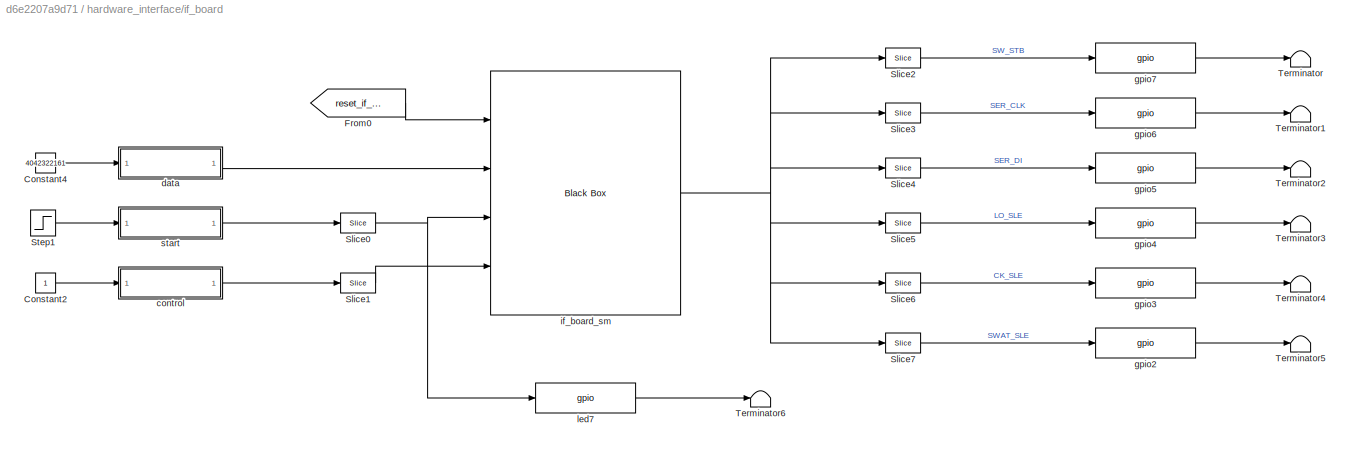
BLOCK [SubSystem] hardware_interface/if_board
  FunctionWithSeparateData = off
  MaskHideContents = off
  MinAlgLoopOccurrences = off
  Opaque = off
  Ports = []
  PropExecContextOutsideSubsystem = off
  RTWSystemCode = Auto
  RequestExecContextInheritance = off
BLOCK [Constant] hardware_interface/if_board/Constant2
BLOCK [Constant] hardware_interface/if_board/Constant4
  Value = 4042322161
BLOCK [From] hardware_interface/if_board/From0
  GotoTag = reset_if_board
  TagVisibility = global
BLOCK [Reference] hardware_interface/if_board/Slice0  REF=xbsIndex_r4/Slice
  Ports = [1, 1]
  SourceBlock = xbsIndex_r4/Slice
  SourceType = Xilinx Bit Slice Extractor Block
  base0 = LSB of Input
  base1 = MSB of Input
  bit0 = 0
  bit1 = 0
  block_type = slice
  boolean_output = on
  dbl_ovrd = off
  has_advanced_control = 0
  mode = Lower Bit Location + Width
  nbits = 1
  sg_icon_stat = 35,20,1,1,white,blue,0,1fd851a7,right,,[ ],[ ]
  sg_mask_display = fprintf('','COMMENT: begin icon graphics');\npatch([0 35 35 0 0 ],[0 0 20 20 0 ],[0.77 0.82 0.91 ]);\nplot([0 35 35 0 0 ],[0 0 20 20 0 ]);\npatch([12.55 15.44 17.44 19.44 21.44 17.44 14.55 12.55 ],[12.22 12.22 14.22 12.22 14.22 14.22 14.22 12.22 ],[1 1 1 ]);\npatch([14.55 17.44 15.44 12.55 14.55 ],[10.22 10.22 12.22 12.22 10.22 ],[0.931 0.946 0.973 ]);\npatch([12.55 15.44 17.44 14.55 12.55 ],[8.22 8.22...<+310ch>  <repeated x9 — deduplicated; at blocks: Slice0, Slice1, Slice2, Slice3, Slice4, Slice5, Slice6, Slice7>
  sggui_pos = 57,34,543,459
BLOCK [Reference] hardware_interface/if_board/Slice1  REF=xbsIndex_r4/Slice
  Ports = [1, 1]
  SourceBlock = xbsIndex_r4/Slice
  SourceType = Xilinx Bit Slice Extractor Block
  base0 = LSB of Input
  base1 = MSB of Input
  bit0 = 0
  bit1 = 0
  block_type = slice
  boolean_output = off
  dbl_ovrd = off
  has_advanced_control = 0
  mode = Lower Bit Location + Width
  nbits = 4
  sg_icon_stat = 35,20,1,1,white,blue,0,1fd851a7,right,,[ ],[ ]
  sggui_pos = 47,24,543,459
BLOCK [Reference] hardware_interface/if_board/Slice2  REF=xbsIndex_r4/Slice
  Ports = [1, 1]
  SourceBlock = xbsIndex_r4/Slice
  SourceType = Xilinx Bit Slice Extractor Block
  base0 = LSB of Input
  base1 = MSB of Input
  bit0 = 0
  bit1 = 0
  block_type = slice
  boolean_output = on
  dbl_ovrd = off
  has_advanced_control = 0
  mode = Lower Bit Location + Width
  nbits = 4
  sg_icon_stat = 35,20,1,1,white,blue,0,1fd851a7,right,,[ ],[ ]
  sggui_pos = 37,14,543,459
BLOCK [Reference] hardware_interface/if_board/Slice3  REF=xbsIndex_r4/Slice
  Ports = [1, 1]
  SourceBlock = xbsIndex_r4/Slice
  SourceType = Xilinx Bit Slice Extractor Block
  base0 = LSB of Input
  base1 = MSB of Input
  bit0 = 1
  bit1 = 0
  block_type = slice
  boolean_output = on
  dbl_ovrd = off
  has_advanced_control = 0
  mode = Lower Bit Location + Width
  nbits = 4
  sg_icon_stat = 35,20,1,1,white,blue,0,1fd851a7,right,,[ ],[ ]
  sggui_pos = 37,14,543,459
BLOCK [Reference] hardware_interface/if_board/Slice4  REF=xbsIndex_r4/Slice
  Ports = [1, 1]
  SourceBlock = xbsIndex_r4/Slice
  SourceType = Xilinx Bit Slice Extractor Block
  base0 = LSB of Input
  base1 = MSB of Input
  bit0 = 2
  bit1 = 0
  block_type = slice
  boolean_output = on
  dbl_ovrd = off
  has_advanced_control = 0
  mode = Lower Bit Location + Width
  nbits = 4
  sg_icon_stat = 35,20,1,1,white,blue,0,1fd851a7,right,,[ ],[ ]
  sggui_pos = 37,14,543,459
BLOCK [Reference] hardware_interface/if_board/Slice5  REF=xbsIndex_r4/Slice
  Ports = [1, 1]
  SourceBlock = xbsIndex_r4/Slice
  SourceType = Xilinx Bit Slice Extractor Block
  base0 = LSB of Input
  base1 = MSB of Input
  bit0 = 3
  bit1 = 0
  block_type = slice
  boolean_output = on
  dbl_ovrd = off
  has_advanced_control = 0
  mode = Lower Bit Location + Width
  nbits = 4
  sg_icon_stat = 35,20,1,1,white,blue,0,1fd851a7,right,,[ ],[ ]
  sggui_pos = 37,14,543,459
BLOCK [Reference] hardware_interface/if_board/Slice6  REF=xbsIndex_r4/Slice
  Ports = [1, 1]
  SourceBlock = xbsIndex_r4/Slice
  SourceType = Xilinx Bit Slice Extractor Block
  base0 = LSB of Input
  base1 = MSB of Input
  bit0 = 4
  bit1 = 0
  block_type = slice
  boolean_output = on
  dbl_ovrd = off
  has_advanced_control = 0
  mode = Lower Bit Location + Width
  nbits = 4
  sg_icon_stat = 35,20,1,1,white,blue,0,1fd851a7,right,,[ ],[ ]
  sggui_pos = 37,14,543,459
BLOCK [Reference] hardware_interface/if_board/Slice7  REF=xbsIndex_r4/Slice
  Ports = [1, 1]
  SourceBlock = xbsIndex_r4/Slice
  SourceType = Xilinx Bit Slice Extractor Block
  base0 = LSB of Input
  base1 = MSB of Input
  bit0 = 5
  bit1 = 0
  block_type = slice
  boolean_output = on
  dbl_ovrd = off
  has_advanced_control = 0
  mode = Lower Bit Location + Width
  nbits = 4
  sg_icon_stat = 35,20,1,1,white,blue,0,1fd851a7,right,,[ ],[ ]
  sggui_pos = 37,14,543,459
BLOCK [Step] hardware_interface/if_board/Step1
  SampleTime = 1
  Time = 20
BLOCK [Terminator] hardware_interface/if_board/Terminator
BLOCK [Terminator] hardware_interface/if_board/Terminator1
BLOCK [Terminator] hardware_interface/if_board/Terminator2
BLOCK [Terminator] hardware_interface/if_board/Terminator3
BLOCK [Terminator] hardware_interface/if_board/Terminator4
BLOCK [Terminator] hardware_interface/if_board/Terminator5
BLOCK [Terminator] hardware_interface/if_board/Terminator6
BLOCK [SubSystem] hardware_interface/if_board/control
  AncestorBlock = xps_library/software register
  AttributesFormatString = 1input
  FunctionWithSeparateData = off
  MaskHideContents = off
  MinAlgLoopOccurrences = off
  Opaque = off
  Ports = [1, 1]
  PropExecContextOutsideSubsystem = off
  RTWSystemCode = Auto
  RequestExecContextInheritance = off
  Tag = xps:sw_reg
BLOCK [Outport] hardware_interface/if_board/control/in_reg
  IconDisplay = Port number
BLOCK [Reference] hardware_interface/if_board/control/io_delay  REF=xbsIndex_r4/Delay
  Ports = [1, 1]
  SourceBlock = xbsIndex_r4/Delay
  SourceType = Xilinx Delay Block
  block_type = delay
  dbl_ovrd = off
  en = off
  has_advanced_control = 0
  infoedit = Hardware notes: A delay line is a chain, each link of which is an SRL16 followed by a flip-flop.
  infoeditControl = Selection of Reset will increase slice count due to use of real FFs and instead of SRLs
  latency = 0
  reg_retiming = on
  rst = off
  sg_icon_stat = 50,20,1,1,white,blue,0,24450e6f,right,,[ ],[ ]
  sg_mask_display = fprintf('','COMMENT: begin icon graphics');\npatch([0 50 50 0 0 ],[0 0 20 20 0 ],[0.77 0.82 0.91 ]);\nplot([0 50 50 0 0 ],[0 0 20 20 0 ]);\npatch([20.55 23.44 25.44 27.44 29.44 25.44 22.55 20.55 ],[12.22 12.22 14.22 12.22 14.22 14.22 14.22 12.22 ],[1 1 1 ]);\npatch([22.55 25.44 23.44 20.55 22.55 ],[10.22 10.22 12.22 12.22 10.22 ],[0.931 0.946 0.973 ]);\npatch([20.55 23.44 25.44 22.55 20.55 ],[8.22 8.22...<+310ch>  <repeated x10 — deduplicated; at blocks: io_delay, slice_reg>
  sggui_pos = -1,-1,-1,-1
  xl_area = [0,0,0,0,0,0,0]
  xl_use_area = off
BLOCK [Reference] hardware_interface/if_board/control/nist_library_hardware_interface_if_board_control_user_data_out  REF=xbsIndex_r4/Gateway In
  ADCChannel = '1'
  LOCs = {}
  Ports = [1, 1]
  SourceBlock = xbsIndex_r4/Gateway In
  SourceType = Xilinx Gateway In Block
  UseAsADC = off
  arith_type = Unsigned
  bin_pt = 0
  block_type = gatewayin
  dbl_ovrd = off
  exp_width = 8
  frac_width = 24
  gui_display_data_type = Fixed-point
  has_advanced_control = 0
  hdl_port = on
  infoedit = Gateway in block.  Converts inputs of type Simulink integer, single, double and fixed-point to  Xilinx fixed-point or floating-point data type.<br><br>Hardware notes:  In hardware these blocks become top level input ports.  <repeated x5 — deduplicated; at blocks: nist_library_hardware_interface_if_board_contro…, nist_library_hardware_interface_if_board_data_u…, nist_library_hardware_interface_if_board_start_…, nist_library_hardware_interface_tengbe_dest_ip_…, nist_library_hardware_interface_tengbe_dest_por…>
  inherit_from_input = off
  locs_specified = off
  n_bits = 32
  overflow = Saturate
  period = 1
  preci_type = Single
  quantization = Round  (unbiased: +/- Inf)
  sg_icon_stat = 50,20,1,1,white,yellow,1,00d3666e,right,,[ ],[ ]
  sg_mask_display = fprintf('','COMMENT: begin icon graphics');\npatch([0 50 50 0 0 ],[0 0 20 20 0 ],[0.95 0.93 0.65 ]);\nplot([0 50 50 0 0 ],[0 0 20 20 0 ]);\npatch([20.55 23.44 25.44 27.44 29.44 25.44 22.55 20.55 ],[12.22 12.22 14.22 12.22 14.22 14.22 14.22 12.22 ],[1 1 1 ]);\npatch([22.55 25.44 23.44 20.55 22.55 ],[10.22 10.22 12.22 12.22 10.22 ],[0.985 0.979 0.895 ]);\npatch([20.55 23.44 25.44 22.55 20.55 ],[8.22 8.22...<+383ch>  <repeated x5 — deduplicated; at blocks: nist_library_hardware_interface_if_board_contro…, nist_library_hardware_interface_if_board_data_u…, nist_library_hardware_interface_if_board_start_…, nist_library_hardware_interface_tengbe_dest_ip_…, nist_library_hardware_interface_tengbe_dest_por…>
  sggui_pos = -1,-1,-1,-1
  timing_constraint = None
  xl_area = [0,0,0,0,0,0,0]
  xl_use_area = off
BLOCK [Reference] hardware_interface/if_board/control/reint1  REF=xbsIndex_r4/Reinterpret
  Ports = [1, 1]
  SourceBlock = xbsIndex_r4/Reinterpret
  SourceType = Xilinx Type Reinterpreter Block
  arith_type = Unsigned
  bin_pt = 0
  block_type = reinterpret
  force_arith_type = on
  force_bin_pt = on
  has_advanced_control = 0
  sg_icon_stat = 50,20,1,1,white,blue,0,6b04d0b0,right,,[ ],[ ]
  sg_mask_display = fprintf('','COMMENT: begin icon graphics');\npatch([0 50 50 0 0 ],[0 0 20 20 0 ],[0.77 0.82 0.91 ]);\nplot([0 50 50 0 0 ],[0 0 20 20 0 ]);\npatch([20.55 23.44 25.44 27.44 29.44 25.44 22.55 20.55 ],[12.22 12.22 14.22 12.22 14.22 14.22 14.22 12.22 ],[1 1 1 ]);\npatch([22.55 25.44 23.44 20.55 22.55 ],[10.22 10.22 12.22 12.22 10.22 ],[0.931 0.946 0.973 ]);\npatch([20.55 23.44 25.44 22.55 20.55 ],[8.22 8.22...<+300ch>  <repeated x5 — deduplicated; at blocks: reint1>
  sggui_pos = -1,-1,-1,-1
BLOCK [Inport] hardware_interface/if_board/control/sim_1
  IconDisplay = Port number
BLOCK [Reference] hardware_interface/if_board/control/slice_reg  REF=xbsIndex_r4/Slice
  Ports = [1, 1]
  SourceBlock = xbsIndex_r4/Slice
  SourceType = Xilinx Bit Slice Extractor Block
  base0 = LSB of Input
  base1 = MSB of Input
  bit0 = 0
  bit1 = 0
  block_type = slice
  boolean_output = off
  dbl_ovrd = off
  has_advanced_control = 0
  mode = Lower Bit Location + Width
  nbits = 32
  sg_icon_stat = 50,20,1,1,white,blue,0,1fd851a7,right,,[ ],[ ]
  sggui_pos = -1,-1,-1,-1
BLOCK [SubSystem] hardware_interface/if_board/data
  AncestorBlock = xps_library/software register
  AttributesFormatString = 1input
  FunctionWithSeparateData = off
  MaskHideContents = off
  MinAlgLoopOccurrences = off
  Opaque = off
  Ports = [1, 1]
  PropExecContextOutsideSubsystem = off
  RTWSystemCode = Auto
  RequestExecContextInheritance = off
  Tag = xps:sw_reg
BLOCK [Outport] hardware_interface/if_board/data/in_reg
  IconDisplay = Port number
BLOCK [Reference] hardware_interface/if_board/data/io_delay  REF=xbsIndex_r4/Delay
  Ports = [1, 1]
  SourceBlock = xbsIndex_r4/Delay
  SourceType = Xilinx Delay Block
  block_type = delay
  dbl_ovrd = off
  en = off
  has_advanced_control = 0
  infoedit = Hardware notes: A delay line is a chain, each link of which is an SRL16 followed by a flip-flop.
  infoeditControl = Selection of Reset will increase slice count due to use of real FFs and instead of SRLs
  latency = 0
  reg_retiming = on
  rst = off
  sg_icon_stat = 50,20,1,1,white,blue,0,24450e6f,right,,[ ],[ ]
  sggui_pos = -1,-1,-1,-1
  xl_area = [0,0,0,0,0,0,0]
  xl_use_area = off
BLOCK [Reference] hardware_interface/if_board/data/nist_library_hardware_interface_if_board_data_user_data_out  REF=xbsIndex_r4/Gateway In
  ADCChannel = '1'
  LOCs = {}
  Ports = [1, 1]
  SourceBlock = xbsIndex_r4/Gateway In
  SourceType = Xilinx Gateway In Block
  UseAsADC = off
  arith_type = Unsigned
  bin_pt = 0
  block_type = gatewayin
  dbl_ovrd = off
  exp_width = 8
  frac_width = 24
  gui_display_data_type = Fixed-point
  has_advanced_control = 0
  hdl_port = on
  inherit_from_input = off
  locs_specified = off
  n_bits = 32
  overflow = Saturate
  period = 1
  preci_type = Single
  quantization = Round  (unbiased: +/- Inf)
  sg_icon_stat = 50,20,1,1,white,yellow,1,00d3666e,right,,[ ],[ ]
  sggui_pos = -1,-1,-1,-1
  timing_constraint = None
  xl_area = [0,0,0,0,0,0,0]
  xl_use_area = off
BLOCK [Reference] hardware_interface/if_board/data/reint1  REF=xbsIndex_r4/Reinterpret
  Ports = [1, 1]
  SourceBlock = xbsIndex_r4/Reinterpret
  SourceType = Xilinx Type Reinterpreter Block
  arith_type = Unsigned
  bin_pt = 0
  block_type = reinterpret
  force_arith_type = on
  force_bin_pt = on
  has_advanced_control = 0
  sg_icon_stat = 50,20,1,1,white,blue,0,6b04d0b0,right,,[ ],[ ]
  sggui_pos = -1,-1,-1,-1
BLOCK [Inport] hardware_interface/if_board/data/sim_1
  IconDisplay = Port number
BLOCK [Reference] hardware_interface/if_board/data/slice_reg  REF=xbsIndex_r4/Slice
  Ports = [1, 1]
  SourceBlock = xbsIndex_r4/Slice
  SourceType = Xilinx Bit Slice Extractor Block
  base0 = LSB of Input
  base1 = MSB of Input
  bit0 = 0
  bit1 = 0
  block_type = slice
  boolean_output = off
  dbl_ovrd = off
  has_advanced_control = 0
  mode = Lower Bit Location + Width
  nbits = 32
  sg_icon_stat = 50,20,1,1,white,blue,0,1fd851a7,right,,[ ],[ ]
  sggui_pos = -1,-1,-1,-1
BLOCK [Reference] hardware_interface/if_board/gpio2  REF=xps_library/gpio  (lib defined in mdl_00b5cec29cd0, mdl_02ab6ecaa3d1, +5 more)
  Ports = [1, 1]
  SourceBlock = xps_library/gpio
  SourceType = gpio
  Tag = xps:gpio
  arith_type = Unsigned
  bin_pt = 0
  bit_index = 2
  bitwidth = 1
  io_dir = out
  io_group = ROACH2:gpio
  reg_clk_phase = 0
  reg_iob = on
  sample_period = 1
  termination = None
  use_ddr = off
  use_single_ended = off
BLOCK [Reference] hardware_interface/if_board/gpio3  REF=xps_library/gpio  (lib defined in mdl_00b5cec29cd0, mdl_02ab6ecaa3d1, +5 more)
  Ports = [1, 1]
  SourceBlock = xps_library/gpio
  SourceType = gpio
  Tag = xps:gpio
  arith_type = Unsigned
  bin_pt = 0
  bit_index = 3
  bitwidth = 1
  io_dir = out
  io_group = ROACH2:gpio
  reg_clk_phase = 0
  reg_iob = on
  sample_period = 1
  termination = None
  use_ddr = off
  use_single_ended = off
BLOCK [Reference] hardware_interface/if_board/gpio4  REF=xps_library/gpio  (lib defined in mdl_00b5cec29cd0, mdl_02ab6ecaa3d1, +5 more)
  Ports = [1, 1]
  SourceBlock = xps_library/gpio
  SourceType = gpio
  Tag = xps:gpio
  arith_type = Unsigned
  bin_pt = 0
  bit_index = 4
  bitwidth = 1
  io_dir = out
  io_group = ROACH2:gpio
  reg_clk_phase = 0
  reg_iob = on
  sample_period = 1
  termination = None
  use_ddr = off
  use_single_ended = off
BLOCK [Reference] hardware_interface/if_board/gpio5  REF=xps_library/gpio  (lib defined in mdl_00b5cec29cd0, mdl_02ab6ecaa3d1, +5 more)
  Ports = [1, 1]
  SourceBlock = xps_library/gpio
  SourceType = gpio
  Tag = xps:gpio
  arith_type = Unsigned
  bin_pt = 0
  bit_index = 5
  bitwidth = 1
  io_dir = out
  io_group = ROACH2:gpio
  reg_clk_phase = 0
  reg_iob = on
  sample_period = 1
  termination = None
  use_ddr = off
  use_single_ended = off
BLOCK [Reference] hardware_interface/if_board/gpio6  REF=xps_library/gpio  (lib defined in mdl_00b5cec29cd0, mdl_02ab6ecaa3d1, +5 more)
  Ports = [1, 1]
  SourceBlock = xps_library/gpio
  SourceType = gpio
  Tag = xps:gpio
  arith_type = Unsigned
  bin_pt = 0
  bit_index = 6
  bitwidth = 1
  io_dir = out
  io_group = ROACH2:gpio
  reg_clk_phase = 0
  reg_iob = on
  sample_period = 1
  termination = None
  use_ddr = off
  use_single_ended = off
BLOCK [Reference] hardware_interface/if_board/gpio7  REF=xps_library/gpio  (lib defined in mdl_00b5cec29cd0, mdl_02ab6ecaa3d1, +5 more)
  Ports = [1, 1]
  SourceBlock = xps_library/gpio
  SourceType = gpio
  Tag = xps:gpio
  arith_type = Unsigned
  bin_pt = 0
  bit_index = 7
  bitwidth = 1
  io_dir = out
  io_group = ROACH2:gpio
  reg_clk_phase = 0
  reg_iob = on
  sample_period = 1
  termination = None
  use_ddr = off
  use_single_ended = off
BLOCK [Reference] hardware_interface/if_board/if_board_sm  REF=xbsIndex_r4/Black Box
  Ports = [4, 1]
  SourceBlock = xbsIndex_r4/Black Box
  SourceType = Xilinx Black Box Block
  block_type = blackbox2
  has_advanced_control = 0
  infoedit = Incorporates black box HDL and simulation model into a System Generator design.<br><br>You must supply a Black Box with certain information about the HDL component you would like to bring into System Generator. This information is provided through a Matlab function.<br><br>When "Simulation mode" is set to "Inactive", you will typically want to provide a separate simulation model by using a Simulat...<+126ch>
  init_code = ROACH2_IF_SM_config
  sg_icon_stat = 190,244,4,1,white,blue,0,d7129f53,right,,[ ],[ ]
  sg_mask_display = fprintf('','COMMENT: begin icon graphics');\npatch([0 55 55 0 0 ],[0 0 56 56 0 ],[0.77 0.82 0.91 ]);\nplot([0 55 55 0 0 ],[0 0 56 56 0 ]);\npatch([11.425 21.54 28.54 35.54 42.54 28.54 18.425 11.425 ],[35.77 35.77 42.77 35.77 42.77 42.77 42.77 35.77 ],[1 1 1 ]);\npatch([18.425 28.54 21.54 11.425 18.425 ],[28.77 28.77 35.77 35.77 28.77 ],[0.931 0.946 0.973 ]);\npatch([11.425 21.54 28.54 18.425 11.425 ],[...<+285ch>
  sggui_pos = 37,14,416,454
  sim_method = Inactive
  verbose = off
  xl_area = [0,0,0,0,0,0,0]
  xl_use_area = off
BLOCK [Reference] hardware_interface/if_board/led7  REF=xps_library/gpio  (lib defined in mdl_00b5cec29cd0, mdl_02ab6ecaa3d1, +5 more)
  Ports = [1, 1]
  SourceBlock = xps_library/gpio
  SourceType = gpio
  Tag = xps:gpio
  arith_type = Unsigned
  bin_pt = 0
  bit_index = 7
  bitwidth = 1
  io_dir = out
  io_group = ROACH2:led
  reg_clk_phase = 0
  reg_iob = on
  sample_period = 1
  termination = None
  use_ddr = off
  use_single_ended = off
BLOCK [SubSystem] hardware_interface/if_board/start
  AncestorBlock = xps_library/software register
  AttributesFormatString = 1input
  FunctionWithSeparateData = off
  MaskHideContents = off
  MinAlgLoopOccurrences = off
  Opaque = off
  Ports = [1, 1]
  PropExecContextOutsideSubsystem = off
  RTWSystemCode = Auto
  RequestExecContextInheritance = off
  Tag = xps:sw_reg
BLOCK [Outport] hardware_interface/if_board/start/in_reg
  IconDisplay = Port number
BLOCK [Reference] hardware_interface/if_board/start/io_delay  REF=xbsIndex_r4/Delay
  Ports = [1, 1]
  SourceBlock = xbsIndex_r4/Delay
  SourceType = Xilinx Delay Block
  block_type = delay
  dbl_ovrd = off
  en = off
  has_advanced_control = 0
  infoedit = Hardware notes: A delay line is a chain, each link of which is an SRL16 followed by a flip-flop.
  infoeditControl = Selection of Reset will increase slice count due to use of real FFs and instead of SRLs
  latency = 0
  reg_retiming = on
  rst = off
  sg_icon_stat = 50,20,1,1,white,blue,0,24450e6f,right,,[ ],[ ]
  sggui_pos = -1,-1,-1,-1
  xl_area = [0,0,0,0,0,0,0]
  xl_use_area = off
BLOCK [Reference] hardware_interface/if_board/start/nist_library_hardware_interface_if_board_start_user_data_out  REF=xbsIndex_r4/Gateway In
  ADCChannel = '1'
  LOCs = {}
  Ports = [1, 1]
  SourceBlock = xbsIndex_r4/Gateway In
  SourceType = Xilinx Gateway In Block
  UseAsADC = off
  arith_type = Unsigned
  bin_pt = 0
  block_type = gatewayin
  dbl_ovrd = off
  exp_width = 8
  frac_width = 24
  gui_display_data_type = Fixed-point
  has_advanced_control = 0
  hdl_port = on
  inherit_from_input = off
  locs_specified = off
  n_bits = 32
  overflow = Saturate
  period = 1
  preci_type = Single
  quantization = Round  (unbiased: +/- Inf)
  sg_icon_stat = 50,20,1,1,white,yellow,1,00d3666e,right,,[ ],[ ]
  sggui_pos = -1,-1,-1,-1
  timing_constraint = None
  xl_area = [0,0,0,0,0,0,0]
  xl_use_area = off
BLOCK [Reference] hardware_interface/if_board/start/reint1  REF=xbsIndex_r4/Reinterpret
  Ports = [1, 1]
  SourceBlock = xbsIndex_r4/Reinterpret
  SourceType = Xilinx Type Reinterpreter Block
  arith_type = Unsigned
  bin_pt = 0
  block_type = reinterpret
  force_arith_type = on
  force_bin_pt = on
  has_advanced_control = 0
  sg_icon_stat = 50,20,1,1,white,blue,0,6b04d0b0,right,,[ ],[ ]
  sggui_pos = -1,-1,-1,-1
BLOCK [Inport] hardware_interface/if_board/start/sim_1
  IconDisplay = Port number
BLOCK [Reference] hardware_interface/if_board/start/slice_reg  REF=xbsIndex_r4/Slice
  Ports = [1, 1]
  SourceBlock = xbsIndex_r4/Slice
  SourceType = Xilinx Bit Slice Extractor Block
  base0 = LSB of Input
  base1 = MSB of Input
  bit0 = 0
  bit1 = 0
  block_type = slice
  boolean_output = off
  dbl_ovrd = off
  has_advanced_control = 0
  mode = Lower Bit Location + Width
  nbits = 32
  sg_icon_stat = 50,20,1,1,white,blue,0,1fd851a7,right,,[ ],[ ]
  sggui_pos = -1,-1,-1,-1
BLOCK [SubSystem] hardware_interface/tengbe
  FunctionWithSeparateData = off
  MaskHideContents = off
  MinAlgLoopOccurrences = off
  Opaque = off
  Ports = [3]
  PropExecContextOutsideSubsystem = off
  RTWSystemCode = Auto
  RequestExecContextInheritance = off
BLOCK [Reference] hardware_interface/tengbe/Constant0  REF=xbsIndex_r4/Constant
  Ports = [0, 1]
  SourceBlock = xbsIndex_r4/Constant
  SourceType = Xilinx Constant Block Block
  arith_type = Boolean
  bin_pt = 14
  block_type = constant
  carry = CIN
  const = 1
  dbl_ovrd = off
  dsp48_infoedit = The use of this block for DSP48 instructions is deprecated.  Please use the Opmode block.
  equ = P=C
  exp_width = 8
  explicit_period = off
  frac_width = 24
  gui_display_data_type = Boolean
  has_advanced_control = 0
  inp1 = P
  inp2 = PCIN>>17
  n_bits = 16
  opr = +
  opselect = C
  period = 1
  preci_type = Single
  sg_icon_stat = 25,24,0,1,white,blue,0,1c72b5be,right,,[ ],[ ]
  sg_mask_display = fprintf('','COMMENT: begin icon graphics');\npatch([0 25 25 0 0 ],[0 0 24 24 0 ],[0.77 0.82 0.91 ]);\nplot([0 25 25 0 0 ],[0 0 24 24 0 ]);\npatch([5.325 9.66 12.66 15.66 18.66 12.66 8.325 5.325 ],[15.33 15.33 18.33 15.33 18.33 18.33 18.33 15.33 ],[1 1 1 ]);\npatch([8.325 12.66 9.66 5.325 8.325 ],[12.33 12.33 15.33 15.33 12.33 ],[0.931 0.946 0.973 ]);\npatch([5.325 9.66 12.66 8.325 5.325 ],[9.33 9.33 12...<+301ch>
  sggui_pos = 57,34,337,463
BLOCK [Constant] hardware_interface/tengbe/Constant1
  Value = 60000
BLOCK [Constant] hardware_interface/tengbe/Constant4
  Value = 192*(2^24) + 168*(2^16) + 3*(2^8) + 1*(2^0)
BLOCK [From] hardware_interface/tengbe/From0
  GotoTag = reset_tengbe
  TagVisibility = global
BLOCK [Reference] hardware_interface/tengbe/Register0  REF=xbsIndex_r4/Register
  Ports = [1, 1]
  SourceBlock = xbsIndex_r4/Register
  SourceType = Xilinx Register Block
  block_type = register
  dbl_ovrd = off
  en = off
  has_advanced_control = 0
  init = 0
  rst = off
  sg_icon_stat = 30,26,1,1,white,blue,0,c80657c5,left,,[ ],[ ]
  sg_mask_display = fprintf('','COMMENT: begin icon graphics');\npatch([0 30 30 0 0 ],[0 0 26 26 0 ],[0.77 0.82 0.91 ]);\nplot([0 30 30 0 0 ],[0 0 26 26 0 ]);\npatch([8.325 12.66 15.66 18.66 21.66 15.66 11.325 8.325 ],[16.33 16.33 19.33 16.33 19.33 19.33 19.33 16.33 ],[1 1 1 ]);\npatch([11.325 15.66 12.66 8.325 11.325 ],[13.33 13.33 16.33 16.33 13.33 ],[0.931 0.946 0.973 ]);\npatch([8.325 12.66 15.66 11.325 8.325 ],[10.33...<+405ch>
  sggui_pos = -1,-1,-1,-1
  xl_area = [0,0,0,0,0,0,0]
  xl_use_area = off
BLOCK [Reference] hardware_interface/tengbe/Slice1  REF=xbsIndex_r4/Slice
  Ports = [1, 1]
  SourceBlock = xbsIndex_r4/Slice
  SourceType = Xilinx Bit Slice Extractor Block
  base0 = LSB of Input
  base1 = MSB of Input
  bit0 = 0
  bit1 = 0
  block_type = slice
  boolean_output = off
  dbl_ovrd = off
  has_advanced_control = 0
  mode = Lower Bit Location + Width
  nbits = 16
  sg_icon_stat = 35,20,1,1,white,blue,0,1fd851a7,right,,[ ],[ ]
  sggui_pos = 37,14,543,459
BLOCK [Terminator] hardware_interface/tengbe/Terminator1
BLOCK [Terminator] hardware_interface/tengbe/Terminator10
BLOCK [Terminator] hardware_interface/tengbe/Terminator11
BLOCK [Terminator] hardware_interface/tengbe/Terminator2
BLOCK [Terminator] hardware_interface/tengbe/Terminator3
BLOCK [Terminator] hardware_interface/tengbe/Terminator4
BLOCK [Terminator] hardware_interface/tengbe/Terminator5
BLOCK [Terminator] hardware_interface/tengbe/Terminator6
BLOCK [Terminator] hardware_interface/tengbe/Terminator7
BLOCK [Terminator] hardware_interface/tengbe/Terminator8
BLOCK [Terminator] hardware_interface/tengbe/Terminator9
BLOCK [Inport] hardware_interface/tengbe/data
  IconDisplay = Port number
BLOCK [SubSystem] hardware_interface/tengbe/dest_ip
  AncestorBlock = xps_library/software register
  AttributesFormatString = 1input
  FunctionWithSeparateData = off
  MaskHideContents = off
  MinAlgLoopOccurrences = off
  Opaque = off
  Ports = [1, 1]
  PropExecContextOutsideSubsystem = off
  RTWSystemCode = Auto
  RequestExecContextInheritance = off
  Tag = xps:sw_reg
BLOCK [Outport] hardware_interface/tengbe/dest_ip/in_reg
  IconDisplay = Port number
BLOCK [Reference] hardware_interface/tengbe/dest_ip/io_delay  REF=xbsIndex_r4/Delay
  Ports = [1, 1]
  SourceBlock = xbsIndex_r4/Delay
  SourceType = Xilinx Delay Block
  block_type = delay
  dbl_ovrd = off
  en = off
  has_advanced_control = 0
  infoedit = Hardware notes: A delay line is a chain, each link of which is an SRL16 followed by a flip-flop.
  infoeditControl = Selection of Reset will increase slice count due to use of real FFs and instead of SRLs
  latency = 0
  reg_retiming = on
  rst = off
  sg_icon_stat = 50,20,1,1,white,blue,0,24450e6f,right,,[ ],[ ]
  sggui_pos = -1,-1,-1,-1
  xl_area = [0,0,0,0,0,0,0]
  xl_use_area = off
BLOCK [Reference] hardware_interface/tengbe/dest_ip/nist_library_hardware_interface_tengbe_dest_ip_user_data_out  REF=xbsIndex_r4/Gateway In
  ADCChannel = '1'
  LOCs = {}
  Ports = [1, 1]
  SourceBlock = xbsIndex_r4/Gateway In
  SourceType = Xilinx Gateway In Block
  UseAsADC = off
  arith_type = Unsigned
  bin_pt = 0
  block_type = gatewayin
  dbl_ovrd = off
  exp_width = 8
  frac_width = 24
  gui_display_data_type = Fixed-point
  has_advanced_control = 0
  hdl_port = on
  inherit_from_input = off
  locs_specified = off
  n_bits = 32
  overflow = Saturate
  period = 1
  preci_type = Single
  quantization = Round  (unbiased: +/- Inf)
  sg_icon_stat = 50,20,1,1,white,yellow,1,00d3666e,right,,[ ],[ ]
  sggui_pos = -1,-1,-1,-1
  timing_constraint = None
  xl_area = [0,0,0,0,0,0,0]
  xl_use_area = off
BLOCK [Reference] hardware_interface/tengbe/dest_ip/reint1  REF=xbsIndex_r4/Reinterpret
  Ports = [1, 1]
  SourceBlock = xbsIndex_r4/Reinterpret
  SourceType = Xilinx Type Reinterpreter Block
  arith_type = Unsigned
  bin_pt = 0
  block_type = reinterpret
  force_arith_type = on
  force_bin_pt = on
  has_advanced_control = 0
  sg_icon_stat = 50,20,1,1,white,blue,0,6b04d0b0,right,,[ ],[ ]
  sggui_pos = -1,-1,-1,-1
BLOCK [Inport] hardware_interface/tengbe/dest_ip/sim_1
  IconDisplay = Port number
BLOCK [Reference] hardware_interface/tengbe/dest_ip/slice_reg  REF=xbsIndex_r4/Slice
  Ports = [1, 1]
  SourceBlock = xbsIndex_r4/Slice
  SourceType = Xilinx Bit Slice Extractor Block
  base0 = LSB of Input
  base1 = MSB of Input
  bit0 = 0
  bit1 = 0
  block_type = slice
  boolean_output = off
  dbl_ovrd = off
  has_advanced_control = 0
  mode = Lower Bit Location + Width
  nbits = 32
  sg_icon_stat = 50,20,1,1,white,blue,0,1fd851a7,right,,[ ],[ ]
  sggui_pos = -1,-1,-1,-1
BLOCK [SubSystem] hardware_interface/tengbe/dest_port
  AncestorBlock = xps_library/software register
  AttributesFormatString = 1input
  FunctionWithSeparateData = off
  MaskHideContents = off
  MinAlgLoopOccurrences = off
  Opaque = off
  Ports = [1, 1]
  PropExecContextOutsideSubsystem = off
  RTWSystemCode = Auto
  RequestExecContextInheritance = off
  Tag = xps:sw_reg
BLOCK [Outport] hardware_interface/tengbe/dest_port/in_reg
  IconDisplay = Port number
BLOCK [Reference] hardware_interface/tengbe/dest_port/io_delay  REF=xbsIndex_r4/Delay
  Ports = [1, 1]
  SourceBlock = xbsIndex_r4/Delay
  SourceType = Xilinx Delay Block
  block_type = delay
  dbl_ovrd = off
  en = off
  has_advanced_control = 0
  infoedit = Hardware notes: A delay line is a chain, each link of which is an SRL16 followed by a flip-flop.
  infoeditControl = Selection of Reset will increase slice count due to use of real FFs and instead of SRLs
  latency = 0
  reg_retiming = on
  rst = off
  sg_icon_stat = 50,20,1,1,white,blue,0,24450e6f,right,,[ ],[ ]
  sggui_pos = -1,-1,-1,-1
  xl_area = [0,0,0,0,0,0,0]
  xl_use_area = off
BLOCK [Reference] hardware_interface/tengbe/dest_port/nist_library_hardware_interface_tengbe_dest_port_user_data_out  REF=xbsIndex_r4/Gateway In
  ADCChannel = '1'
  LOCs = {}
  Ports = [1, 1]
  SourceBlock = xbsIndex_r4/Gateway In
  SourceType = Xilinx Gateway In Block
  UseAsADC = off
  arith_type = Unsigned
  bin_pt = 0
  block_type = gatewayin
  dbl_ovrd = off
  exp_width = 8
  frac_width = 24
  gui_display_data_type = Fixed-point
  has_advanced_control = 0
  hdl_port = on
  inherit_from_input = off
  locs_specified = off
  n_bits = 32
  overflow = Saturate
  period = 1
  preci_type = Single
  quantization = Round  (unbiased: +/- Inf)
  sg_icon_stat = 50,20,1,1,white,yellow,1,00d3666e,right,,[ ],[ ]
  sggui_pos = -1,-1,-1,-1
  timing_constraint = None
  xl_area = [0,0,0,0,0,0,0]
  xl_use_area = off
BLOCK [Reference] hardware_interface/tengbe/dest_port/reint1  REF=xbsIndex_r4/Reinterpret
  Ports = [1, 1]
  SourceBlock = xbsIndex_r4/Reinterpret
  SourceType = Xilinx Type Reinterpreter Block
  arith_type = Unsigned
  bin_pt = 0
  block_type = reinterpret
  force_arith_type = on
  force_bin_pt = on
  has_advanced_control = 0
  sg_icon_stat = 50,20,1,1,white,blue,0,6b04d0b0,right,,[ ],[ ]
  sggui_pos = -1,-1,-1,-1
BLOCK [Inport] hardware_interface/tengbe/dest_port/sim_1
  IconDisplay = Port number
BLOCK [Reference] hardware_interface/tengbe/dest_port/slice_reg  REF=xbsIndex_r4/Slice
  Ports = [1, 1]
  SourceBlock = xbsIndex_r4/Slice
  SourceType = Xilinx Bit Slice Extractor Block
  base0 = LSB of Input
  base1 = MSB of Input
  bit0 = 0
  bit1 = 0
  block_type = slice
  boolean_output = off
  dbl_ovrd = off
  has_advanced_control = 0
  mode = Lower Bit Location + Width
  nbits = 32
  sg_icon_stat = 50,20,1,1,white,blue,0,1fd851a7,right,,[ ],[ ]
  sggui_pos = -1,-1,-1,-1
BLOCK [Inport] hardware_interface/tengbe/eof
  IconDisplay = Port number
  Port = 3
BLOCK [Reference] hardware_interface/tengbe/gbe0  REF=xps_library/ten_Gbe_v2  (lib defined in mdl_00b5cec29cd0, mdl_02ab6ecaa3d1, +5 more)
  Ports = [8, 12]
  SourceBlock = xps_library/ten_Gbe_v2
  SourceType = ten_GbE_v2
  Tag = xps:tengbe_v2
  cpu_rx_en = on
  cpu_tx_en = on
  fab_en = on
  fab_gate = 1
  fab_ip = 192*(2^24) + 168*(2^16) + 5*(2^8) + 20*(2^0)
  fab_mac = hex2dec('123456780000')
  fab_udp = 10000
  flavour = sfp+
  large_frames = on
  port_r1 = 0
  port_r2_cx4 = 0
  port_r2_sfpp = 0
  post_emph_r2 = 0.18
  pre_emph = 3
  pre_emph_r2 = 0.74
  rx_dist_ram = on
  rxbadctr = off
  rxctr = off
  rxeofctr = off
  rxeqmix_r2 = 7
  rxerrctr = off
  rxerrctr_len = 100
  rxofctr = off
  rxsnaplen = 0 - no snap
  rxvldctr = off
  show_param = off
  slot = 0
  swing = 800
  swing_r2 = 940
  ttl = hex2dec('FF')
  txctr = off
  txerrctr = off
  txerrctr_len = 100
  txfullctr = off
  txofctr = off
  txsnaplen = 0 - no snap
  txvldctr = off
BLOCK [Reference] hardware_interface/tengbe/led0  REF=xps_library/gpio  (lib defined in mdl_00b5cec29cd0, mdl_02ab6ecaa3d1, +5 more)
  Ports = [1, 1]
  SourceBlock = xps_library/gpio
  SourceType = gpio
  Tag = xps:gpio
  arith_type = Unsigned
  bin_pt = 0
  bit_index = 0
  bitwidth = 1
  io_dir = out
  io_group = ROACH2:led
  reg_clk_phase = 0
  reg_iob = on
  sample_period = 1
  termination = None
  use_ddr = off
  use_single_ended = off
BLOCK [Reference] hardware_interface/tengbe/led1  REF=xps_library/gpio  (lib defined in mdl_00b5cec29cd0, mdl_02ab6ecaa3d1, +5 more)
  Ports = [1, 1]
  SourceBlock = xps_library/gpio
  SourceType = gpio
  Tag = xps:gpio
  arith_type = Unsigned
  bin_pt = 0
  bit_index = 1
  bitwidth = 1
  io_dir = out
  io_group = ROACH2:led
  reg_clk_phase = 0
  reg_iob = on
  sample_period = 1
  termination = None
  use_ddr = off
  use_single_ended = off
BLOCK [Inport] hardware_interface/tengbe/valid
  IconDisplay = Port number
  Port = 2
BLOCK [SubSystem] utility
  FunctionWithSeparateData = off
  MaskHideContents = off
  MinAlgLoopOccurrences = off
  Opaque = off
  Ports = []
  PropExecContextOutsideSubsystem = off
  RTWSystemCode = Auto
  RequestExecContextInheritance = off
BLOCK [SubSystem] utility/complex_mult
  FunctionWithSeparateData = off
  MaskHideContents = off
  MinAlgLoopOccurrences = off
  Opaque = off
  Ports = [4, 2]
  PropExecContextOutsideSubsystem = off
  RTWSystemCode = Auto
  RequestExecContextInheritance = off
BLOCK [Inport] utility/complex_mult/ADC_I
  IconDisplay = Port number
BLOCK [Inport] utility/complex_mult/ADC_Q
  IconDisplay = Port number
  Port = 2
BLOCK [Reference] utility/complex_mult/AddSub  REF=xbsIndex_r4/AddSub
  Ports = [2, 1]
  SourceBlock = xbsIndex_r4/AddSub
  SourceType = Xilinx Adder/Subtracter Block
  arith_type = Unsigned
  bin_pt = 14
  block_type = addsub
  dbl_ovrd = off
  en = off
  has_advanced_control = 0
  hw_selection = Fabric
  latency = 4
  mode = Subtraction
  n_bits = 16
  overflow = Wrap
  pipelined = on
  precision = Full
  quantization = Truncate
  sg_icon_stat = 60,58,2,1,white,blue,0,47390571,right,,[ ],[ ]
  sg_mask_display = fprintf('','COMMENT: begin icon graphics');\npatch([0 60 60 0 0 ],[0 0 58 58 0 ],[0.77 0.82 0.91 ]);\nplot([0 60 60 0 0 ],[0 0 58 58 0 ]);\npatch([12.2 23.76 31.76 39.76 47.76 31.76 20.2 12.2 ],[37.88 37.88 45.88 37.88 45.88 45.88 45.88 37.88 ],[1 1 1 ]);\npatch([20.2 31.76 23.76 12.2 20.2 ],[29.88 29.88 37.88 37.88 29.88 ],[0.931 0.946 0.973 ]);\npatch([12.2 23.76 31.76 20.2 12.2 ],[21.88 21.88 29.88 ...<+520ch>
  sggui_pos = 71,134,416,343
  use_behavioral_HDL = off
  use_carryin = off
  use_carryout = off
  xl_area = [0,0,0,0,0,0,0]
  xl_use_area = off
BLOCK [Reference] utility/complex_mult/AddSub1  REF=xbsIndex_r4/AddSub
  Ports = [2, 1]
  SourceBlock = xbsIndex_r4/AddSub
  SourceType = Xilinx Adder/Subtracter Block
  arith_type = Unsigned
  bin_pt = 14
  block_type = addsub
  dbl_ovrd = off
  en = off
  has_advanced_control = 0
  hw_selection = Fabric
  latency = 4
  mode = Addition
  n_bits = 16
  overflow = Wrap
  pipelined = on
  precision = Full
  quantization = Truncate
  sg_icon_stat = 60,58,2,1,white,blue,0,eeab5c4c,right,,[ ],[ ]
  sg_mask_display = fprintf('','COMMENT: begin icon graphics');\npatch([0 60 60 0 0 ],[0 0 58 58 0 ],[0.77 0.82 0.91 ]);\nplot([0 60 60 0 0 ],[0 0 58 58 0 ]);\npatch([12.2 23.76 31.76 39.76 47.76 31.76 20.2 12.2 ],[37.88 37.88 45.88 37.88 45.88 45.88 45.88 37.88 ],[1 1 1 ]);\npatch([20.2 31.76 23.76 12.2 20.2 ],[29.88 29.88 37.88 37.88 29.88 ],[0.931 0.946 0.973 ]);\npatch([12.2 23.76 31.76 20.2 12.2 ],[21.88 21.88 29.88 ...<+520ch>
  sggui_pos = 63,104,416,343
  use_behavioral_HDL = off
  use_carryin = off
  use_carryout = off
  xl_area = [0,0,0,0,0,0,0]
  xl_use_area = off
BLOCK [Inport] utility/complex_mult/DDS_I
  IconDisplay = Port number
  Port = 3
BLOCK [Inport] utility/complex_mult/DDS_Q
  IconDisplay = Port number
  Port = 4
BLOCK [Outport] utility/complex_mult/I
  IconDisplay = Port number
  Port = 2
BLOCK [Reference] utility/complex_mult/Mult  REF=xbsIndex_r4/Mult
  Ports = [2, 1]
  SourceBlock = xbsIndex_r4/Mult
  SourceType = Xilinx Multiplier Block
  arith_type = Signed  (2's comp)
  bin_pt = 14
  block_type = mult
  dbl_ovrd = off
  en = off
  has_advanced_control = 0
  latency = 4
  n_bits = 16
  opt = Area
  optimum_pipeline = on
  overflow = Wrap
  pipeline = on
  placement_style = Triangular
  precision = Full
  quantization = Truncate
  sg_icon_stat = 55,55,2,1,white,blue,0,d1df6e1f,right,,[ ],[ ]
  sg_mask_display = fprintf('','COMMENT: begin icon graphics');\npatch([0 55 55 0 0 ],[0 0 55 55 0 ],[0.77 0.82 0.91 ]);\nplot([0 55 55 0 0 ],[0 0 55 55 0 ]);\npatch([11.425 21.54 28.54 35.54 42.54 28.54 18.425 11.425 ],[34.77 34.77 41.77 34.77 41.77 41.77 41.77 34.77 ],[1 1 1 ]);\npatch([18.425 28.54 21.54 11.425 18.425 ],[27.77 27.77 34.77 34.77 27.77 ],[0.931 0.946 0.973 ]);\npatch([11.425 21.54 28.54 18.425 11.425 ],[...<+522ch>  <repeated x4 — deduplicated; at blocks: Mult, Mult1, Mult2, Mult3>
  sggui_pos = 60,170,336,548
  use_behavioral_HDL = off
  use_embedded = on
  use_rpm = on
  xl_area = [0,0,0,0,0,0,0]
  xl_use_area = off
BLOCK [Reference] utility/complex_mult/Mult1  REF=xbsIndex_r4/Mult
  Ports = [2, 1]
  SourceBlock = xbsIndex_r4/Mult
  SourceType = Xilinx Multiplier Block
  arith_type = Signed  (2's comp)
  bin_pt = 14
  block_type = mult
  dbl_ovrd = off
  en = off
  has_advanced_control = 0
  latency = 4
  n_bits = 16
  opt = Area
  optimum_pipeline = on
  overflow = Wrap
  pipeline = on
  placement_style = Triangular
  precision = Full
  quantization = Truncate
  sg_icon_stat = 55,55,2,1,white,blue,0,d1df6e1f,right,,[ ],[ ]
  sggui_pos = 52,140,336,548
  use_behavioral_HDL = off
  use_embedded = on
  use_rpm = on
  xl_area = [0,0,0,0,0,0,0]
  xl_use_area = off
BLOCK [Reference] utility/complex_mult/Mult2  REF=xbsIndex_r4/Mult
  Ports = [2, 1]
  SourceBlock = xbsIndex_r4/Mult
  SourceType = Xilinx Multiplier Block
  arith_type = Signed  (2's comp)
  bin_pt = 14
  block_type = mult
  dbl_ovrd = off
  en = off
  has_advanced_control = 0
  latency = 4
  n_bits = 16
  opt = Area
  optimum_pipeline = on
  overflow = Wrap
  pipeline = on
  placement_style = Triangular
  precision = Full
  quantization = Truncate
  sg_icon_stat = 55,55,2,1,white,blue,0,d1df6e1f,right,,[ ],[ ]
  sggui_pos = 52,140,336,548
  use_behavioral_HDL = off
  use_embedded = on
  use_rpm = on
  xl_area = [0,0,0,0,0,0,0]
  xl_use_area = off
BLOCK [Reference] utility/complex_mult/Mult3  REF=xbsIndex_r4/Mult
  Ports = [2, 1]
  SourceBlock = xbsIndex_r4/Mult
  SourceType = Xilinx Multiplier Block
  arith_type = Signed  (2's comp)
  bin_pt = 14
  block_type = mult
  dbl_ovrd = off
  en = off
  has_advanced_control = 0
  latency = 4
  n_bits = 16
  opt = Area
  optimum_pipeline = on
  overflow = Wrap
  pipeline = on
  placement_style = Triangular
  precision = Full
  quantization = Truncate
  sg_icon_stat = 55,55,2,1,white,blue,0,d1df6e1f,right,,[ ],[ ]
  sggui_pos = 60,170,336,548
  use_behavioral_HDL = off
  use_embedded = on
  use_rpm = on
  xl_area = [0,0,0,0,0,0,0]
  xl_use_area = off
BLOCK [Outport] utility/complex_mult/R
  IconDisplay = Port number
BLOCK [Reference] utility/complex_mult/Reinterpret1  REF=xbsIndex_r4/Reinterpret
  Ports = [1, 1]
  SourceBlock = xbsIndex_r4/Reinterpret
  SourceType = Xilinx Type Reinterpreter Block
  arith_type = Signed  (2's comp)
  bin_pt = 14
  block_type = reinterpret
  block_version = 10.1.3
  force_arith_type = on
  force_bin_pt = on
  has_advanced_control = 0
  sg_icon_stat = 55,20,1,1,white,blue,0,6b04d0b0,right,,[ ],[ ]
  sggui_pos = 1290,366,364,363
BLOCK [Reference] utility/complex_mult/Reinterpret11  REF=xbsIndex_r4/Reinterpret
  Ports = [1, 1]
  SourceBlock = xbsIndex_r4/Reinterpret
  SourceType = Xilinx Type Reinterpreter Block
  arith_type = Signed  (2's comp)
  bin_pt = 14
  block_type = reinterpret
  block_version = 10.1.3
  force_arith_type = on
  force_bin_pt = on
  has_advanced_control = 0
  sg_icon_stat = 55,20,1,1,white,blue,0,6b04d0b0,right,,[ ],[ ]
  sggui_pos = 1290,366,364,363
BLOCK [Reference] utility/complex_mult/Reinterpret2  REF=xbsIndex_r4/Reinterpret
  Ports = [1, 1]
  SourceBlock = xbsIndex_r4/Reinterpret
  SourceType = Xilinx Type Reinterpreter Block
  arith_type = Signed  (2's comp)
  bin_pt = 14
  block_type = reinterpret
  block_version = 10.1.3
  force_arith_type = on
  force_bin_pt = on
  has_advanced_control = 0
  sg_icon_stat = 55,20,1,1,white,blue,0,6b04d0b0,right,,[ ],[ ]
  sggui_pos = 1290,366,364,363
BLOCK [Reference] utility/complex_mult/Reinterpret3  REF=xbsIndex_r4/Reinterpret
  Ports = [1, 1]
  SourceBlock = xbsIndex_r4/Reinterpret
  SourceType = Xilinx Type Reinterpreter Block
  arith_type = Signed  (2's comp)
  bin_pt = 14
  block_type = reinterpret
  block_version = 10.1.3
  force_arith_type = on
  force_bin_pt = on
  has_advanced_control = 0
  sg_icon_stat = 55,20,1,1,white,blue,0,6b04d0b0,right,,[ ],[ ]
  sggui_pos = 1290,366,364,363
BLOCK [Reference] utility/complex_mult/Slice1  REF=xbsIndex_r4/Slice
  Ports = [1, 1]
  SourceBlock = xbsIndex_r4/Slice
  SourceType = Xilinx Bit Slice Extractor Block
  base0 = Binary Point of Input
  base1 = Binary Point of Input
  bit0 = -14
  bit1 = 1
  block_type = slice
  block_version = 10.1.3
  boolean_output = off
  dbl_ovrd = off
  has_advanced_control = 0
  mode = Two Bit Locations
  nbits = 12
  sg_icon_stat = 30,18,1,1,white,blue,0,1fd851a7,right,,[ ],[ ]
  sggui_pos = 165,398,543,482
BLOCK [Reference] utility/complex_mult/Slice2  REF=xbsIndex_r4/Slice
  Ports = [1, 1]
  SourceBlock = xbsIndex_r4/Slice
  SourceType = Xilinx Bit Slice Extractor Block
  base0 = Binary Point of Input
  base1 = Binary Point of Input
  bit0 = -14
  bit1 = 1
  block_type = slice
  block_version = 10.1.3
  boolean_output = off
  dbl_ovrd = off
  has_advanced_control = 0
  mode = Two Bit Locations
  nbits = 12
  sg_icon_stat = 30,18,1,1,white,blue,0,1fd851a7,right,,[ ],[ ]
  sggui_pos = 165,398,543,482
BLOCK [Reference] utility/complex_mult/Slice3  REF=xbsIndex_r4/Slice
  Ports = [1, 1]
  SourceBlock = xbsIndex_r4/Slice
  SourceType = Xilinx Bit Slice Extractor Block
  base0 = Binary Point of Input
  base1 = Binary Point of Input
  bit0 = -14
  bit1 = 1
  block_type = slice
  block_version = 10.1.3
  boolean_output = off
  dbl_ovrd = off
  has_advanced_control = 0
  mode = Two Bit Locations
  nbits = 12
  sg_icon_stat = 30,18,1,1,white,blue,0,1fd851a7,right,,[ ],[ ]
  sggui_pos = 165,398,543,482
BLOCK [Reference] utility/complex_mult/Slice8  REF=xbsIndex_r4/Slice
  Ports = [1, 1]
  SourceBlock = xbsIndex_r4/Slice
  SourceType = Xilinx Bit Slice Extractor Block
  base0 = Binary Point of Input
  base1 = Binary Point of Input
  bit0 = -14
  bit1 = 1
  block_type = slice
  block_version = 10.1.3
  boolean_output = off
  dbl_ovrd = off
  has_advanced_control = 0
  mode = Two Bit Locations
  nbits = 12
  sg_icon_stat = 30,18,1,1,white,blue,0,1fd851a7,right,,[ ],[ ]
  sggui_pos = 110,522,543,482
BLOCK [SubSystem] utility/sync_extend
  FunctionWithSeparateData = off
  MaskHideContents = off
  MinAlgLoopOccurrences = off
  Opaque = off
  Ports = [1, 1]
  PropExecContextOutsideSubsystem = off
  RTWSystemCode = Auto
  RequestExecContextInheritance = off
BLOCK [Constant] utility/sync_extend/Constant10
  SampleTime = 1
  Value = 20
  VectorParams1D = off
BLOCK [Constant] utility/sync_extend/Constant12
  SampleTime = 1
  Value = 0
  VectorParams1D = off
BLOCK [Reference] utility/sync_extend/Register42  REF=xbsIndex_r4/Register
  Ports = [1, 1]
  SourceBlock = xbsIndex_r4/Register
  SourceType = Xilinx Register Block
  block_type = register
  dbl_ovrd = off
  en = off
  has_advanced_control = 0
  init = 0
  rst = off
  sg_icon_stat = 35,22,1,1,white,blue,0,c80657c5,right,,[ ],[ ]
  sggui_pos = 2922,520,416,203
  xl_area = [0,0,0,0,0,0,0]
  xl_use_area = off
BLOCK [Reference] utility/sync_extend/Slice4  REF=xbsIndex_r4/Slice
  Ports = [1, 1]
  SourceBlock = xbsIndex_r4/Slice
  SourceType = Xilinx Bit Slice Extractor Block
  base0 = LSB of Input
  base1 = MSB of Input
  bit0 = 0
  bit1 = 0
  block_type = slice
  block_version = 10.1.3
  boolean_output = on
  dbl_ovrd = off
  has_advanced_control = 0
  mode = Lower Bit Location + Width
  nbits = 12
  sg_icon_stat = 30,18,1,1,white,blue,0,1fd851a7,right,,[ ],[ ]
  sggui_pos = 61,104,543,482
BLOCK [Reference] utility/sync_extend/Slice5  REF=xbsIndex_r4/Slice
  Ports = [1, 1]
  SourceBlock = xbsIndex_r4/Slice
  SourceType = Xilinx Bit Slice Extractor Block
  base0 = LSB of Input
  base1 = MSB of Input
  bit0 = 0
  bit1 = 0
  block_type = slice
  block_version = 10.1.3
  boolean_output = off
  dbl_ovrd = off
  has_advanced_control = 0
  mode = Lower Bit Location + Width
  nbits = 12
  sg_icon_stat = 30,18,1,1,white,blue,0,1fd851a7,right,,[ ],[ ]
  sggui_pos = 53,74,543,482
BLOCK [Reference] utility/sync_extend/dataMux5  REF=xbsIndex_r4/Mux
  Ports = [3, 1]
  SourceBlock = xbsIndex_r4/Mux
  SourceType = Xilinx Bus Multiplexer Block
  arith_type = Unsigned
  bin_pt = 14
  block_type = mux
  dbl_ovrd = off
  en = off
  has_advanced_control = 0
  inputs = 2
  latency = 1
  n_bits = 16
  overflow = Wrap
  precision = Full
  quantization = Truncate
  sg_icon_stat = 35,124,3,1,white,blue,3,a150fb03,right,,[ ],[ ]
  sg_mask_display = fprintf('','COMMENT: begin icon graphics');\npatch([0 35 35 0 0 ],[0 17.7143 106.286 124 0 ],[0.77 0.82 0.91 ]);\nplot([0 35 35 0 0 ],[0 17.7143 106.286 124 0 ]);\npatch([5.875 13.1 18.1 23.1 28.1 18.1 10.875 5.875 ],[67.55 67.55 72.55 67.55 72.55 72.55 72.55 67.55 ],[1 1 1 ]);\npatch([10.875 18.1 13.1 5.875 10.875 ],[62.55 62.55 67.55 67.55 62.55 ],[0.931 0.946 0.973 ]);\npatch([5.875 13.1 18.1 10.875...<+473ch>
  sggui_pos = 45,44,416,343
  xl_area = [0,0,0,0,0,0,0]
  xl_use_area = off
BLOCK [Reference] utility/sync_extend/delay  REF=xps_library/software register  (lib defined in mdl_00b5cec29cd0, mdl_02ab6ecaa3d1, +5 more)
  AttributesFormatString = 1input
  Ports = [1, 1]
  SourceBlock = xps_library/software register
  SourceType = swreg
  Tag = xps:sw_reg
  arith_types = 0
  bin_pts = 0
  bitwidths = 32
  io_delay = 0
  io_dir = From Processor
  mode = one value
  names = reg
  sample_period = 1
  show_format = off
  sim_port = on
BLOCK [Reference] utility/sync_extend/edge_detect0  REF=casper_library_misc/edge_detect  (lib defined in mdl_357510c33b49, mdl_57b5f564ae26, +4 more)
  AttributesFormatString = falling edges\nactive high
  Ports = [1, 1]
  SourceBlock = casper_library_misc/edge_detect
  SourceType = edge_detect
  UserDataPersistent = on
  edge = Falling
  polarity = Active High
  x_in = [0 0.08 0.08 0.16 0.16 0.24 0.24 0.32 0.32 0.4]
  x_out = [0.6 0.68 0.68 0.76 0.76 0.84 0.84 0.92 0.92 1]
  y_in = [-1 -1  1  1  1  1  1  1  1  1]
  y_out = [-1 -1  1  1 -1 -1 -1 -1 -1 -1]
BLOCK [Reference] utility/sync_extend/edge_detect1  REF=casper_library_misc/edge_detect  (lib defined in mdl_357510c33b49, mdl_57b5f564ae26, +4 more)
  AttributesFormatString = falling edges\nactive high
  Ports = [1, 1]
  SourceBlock = casper_library_misc/edge_detect
  SourceType = edge_detect
  UserDataPersistent = on
  edge = Falling
  polarity = Active High
  x_in = [0 0.08 0.08 0.16 0.16 0.24 0.24 0.32 0.32 0.4]
  x_out = [0.6 0.68 0.68 0.76 0.76 0.84 0.84 0.92 0.92 1]
  y_in = [-1 -1  1  1  1  1  1  1  1  1]
  y_out = [-1 -1  1  1 -1 -1 -1 -1 -1 -1]
BLOCK [Reference] utility/sync_extend/en  REF=xps_library/software register  (lib defined in mdl_00b5cec29cd0, mdl_02ab6ecaa3d1, +5 more)
  AttributesFormatString = 1input
  Ports = [1, 1]
  SourceBlock = xps_library/software register
  SourceType = swreg
  Tag = xps:sw_reg
  arith_types = 0
  bin_pts = 0
  bitwidths = 32
  io_delay = 0
  io_dir = From Processor
  mode = one value
  names = reg
  sample_period = 1
  show_format = off
  sim_port = on
BLOCK [Reference] utility/sync_extend/pulse_ext1  REF=casper_library_misc/pulse_ext  (lib defined in mdl_357510c33b49, mdl_57b5f564ae26, +4 more)
  Ports = [1, 1]
  SourceBlock = casper_library_misc/pulse_ext
  SourceType = pulse_ext
  pulse_len = 128
BLOCK [Reference] utility/sync_extend/pulse_ext2  REF=casper_library_misc/pulse_ext  (lib defined in mdl_357510c33b49, mdl_57b5f564ae26, +4 more)
  Ports = [1, 1]
  SourceBlock = casper_library_misc/pulse_ext
  SourceType = pulse_ext
  pulse_len = 32
BLOCK [Reference] utility/sync_extend/sync_delay_prog  REF=casper_library_delays/sync_delay_prog  (lib defined in mdl_259a08a3fac5, mdl_65009615caaa, +5 more)
  MaxDelay = 12
  Ports = [2, 1]
  SourceBlock = casper_library_delays/sync_delay_prog
  SourceType = sync_delay_prog
BLOCK [Inport] utility/sync_extend/sync_in
  IconDisplay = Port number
BLOCK [Outport] utility/sync_extend/sync_out
  IconDisplay = Port number
ANNOTATION gamma_ray/chan: 12 bit ADC with a coadded sample making it 13 bits for I or Q
ANNOTATION gamma_ray/chan: 33.10 MHz
ANNOTATION gamma_ray/chan: Absolute angles must be inputed. All DDS are COSINE().
ANNOTATION utility/sync_extend: Minimum is 1
LINE gamma_ray/chan/ADC_In:1 -> gamma_ray/chan/Register2:1
LINE gamma_ray/chan/Concat6:1 -> gamma_ray/chan/Register97:1
LINE gamma_ray/chan/Concat7:1 -> gamma_ray/chan/Register103:1
LINE gamma_ray/chan/Constant1:1 -> gamma_ray/chan/pinc_dac:1
LINE gamma_ray/chan/Constant2:1 -> gamma_ray/chan/pof_dac_Q:1
LINE gamma_ray/chan/Constant3:1 -> gamma_ray/chan/pof_ddc_I:1
LINE gamma_ray/chan/Constant4:1 -> gamma_ray/chan/dds_ddc_pinc:1
LINE gamma_ray/chan/Constant5:1 -> gamma_ray/chan/pof_ddc_Q:1
LINE gamma_ray/chan/Constant6:1 -> gamma_ray/chan/valid_ddc_dds:1
LINE gamma_ray/chan/Constant8:1 -> gamma_ray/chan/pof_dac_I:1
LINE gamma_ray/chan/Constant9:1 -> gamma_ray/chan/k:1
LINE gamma_ray/chan/Mult0:1 -> gamma_ray/chan/Reinterpret31:1
LINE gamma_ray/chan/Mult1:1 -> gamma_ray/chan/Reinterpret30:1
NET gamma_ray/chan/Register100:1 -> gamma_ray/chan/Mult0:2, gamma_ray/chan/Mult1:2
LINE gamma_ray/chan/Register101:1 -> gamma_ray/chan/Concat7:2
LINE gamma_ray/chan/Register102:1 -> gamma_ray/chan/Concat7:1
LINE gamma_ray/chan/Register103:1 -> gamma_ray/chan/DAC_out:1
NET gamma_ray/chan/Register1:1 -> gamma_ray/chan/dac_I:3, gamma_ray/chan/dac_q:3
NET gamma_ray/chan/Register2:1 -> gamma_ray/chan/Slice1:1, gamma_ray/chan/Slice2:1
NET gamma_ray/chan/Register3:1 -> gamma_ray/chan/Register82:1, gamma_ray/chan/Register89:1
NET gamma_ray/chan/Register4:1 -> gamma_ray/chan/Register80:1, gamma_ray/chan/Register81:1
LINE gamma_ray/chan/Register5:1 -> gamma_ray/chan/Register7:1
NET gamma_ray/chan/Register6:1 -> gamma_ray/chan/Register77:1, gamma_ray/chan/Register79:1
LINE gamma_ray/chan/Register77:1 -> gamma_ray/chan/dac_I:1
LINE gamma_ray/chan/Register78:1 -> gamma_ray/chan/Mult0:1
LINE gamma_ray/chan/Register79:1 -> gamma_ray/chan/dac_q:1
LINE gamma_ray/chan/Register7:1 -> gamma_ray/chan/chan_valid_out:1
LINE gamma_ray/chan/Register80:1 -> gamma_ray/chan/ddc_I:1
LINE gamma_ray/chan/Register81:1 -> gamma_ray/chan/ddc_q:1
LINE gamma_ray/chan/Register82:1 -> gamma_ray/chan/ddc_q:3
LINE gamma_ray/chan/Register83:1 -> gamma_ray/chan/ddc_q:2
LINE gamma_ray/chan/Register84:1 -> gamma_ray/chan/dac_I:2
LINE gamma_ray/chan/Register86:1 -> gamma_ray/chan/dac_q:2
LINE gamma_ray/chan/Register88:1 -> gamma_ray/chan/ddc_I:2
LINE gamma_ray/chan/Register89:1 -> gamma_ray/chan/ddc_I:3
LINE gamma_ray/chan/Register90:1 -> gamma_ray/chan/Mult1:1
LINE gamma_ray/chan/Register91:1 -> gamma_ray/chan/mix:3
LINE gamma_ray/chan/Register92:1 -> gamma_ray/chan/mix:4
LINE gamma_ray/chan/Register93:1 -> gamma_ray/chan/Concat6:2
LINE gamma_ray/chan/Register94:1 -> gamma_ray/chan/fir_1mhz:2
LINE gamma_ray/chan/Register95:1 -> gamma_ray/chan/fir_1mhz:1
LINE gamma_ray/chan/Register96:1 -> gamma_ray/chan/Concat6:1
LINE gamma_ray/chan/Register97:1 -> gamma_ray/chan/chan_data_out:1
LINE gamma_ray/chan/Register98:1 -> gamma_ray/chan/mix:1
LINE gamma_ray/chan/Register99:1 -> gamma_ray/chan/mix:2
LINE gamma_ray/chan/Reinterpret1:1 -> gamma_ray/chan/Register99:1
LINE gamma_ray/chan/Reinterpret22:1 -> gamma_ray/chan/Register1:1
LINE gamma_ray/chan/Reinterpret23:1 -> gamma_ray/chan/Register93:1
LINE gamma_ray/chan/Reinterpret24:1 -> gamma_ray/chan/Register84:1
LINE gamma_ray/chan/Reinterpret25:1 -> gamma_ray/chan/Register86:1
LINE gamma_ray/chan/Reinterpret26:1 -> gamma_ray/chan/Register88:1
LINE gamma_ray/chan/Reinterpret27:1 -> gamma_ray/chan/Register83:1
LINE gamma_ray/chan/Reinterpret28:1 -> gamma_ray/chan/Register96:1
LINE gamma_ray/chan/Reinterpret29:1 -> gamma_ray/chan/Register100:1
LINE gamma_ray/chan/Reinterpret2:1 -> gamma_ray/chan/Register98:1
LINE gamma_ray/chan/Reinterpret30:1 -> gamma_ray/chan/Register101:1
LINE gamma_ray/chan/Reinterpret31:1 -> gamma_ray/chan/Register102:1
LINE gamma_ray/chan/Reinterpret3:1 -> gamma_ray/chan/Register3:1
LINE gamma_ray/chan/Slice1:1 -> gamma_ray/chan/Reinterpret2:1
LINE gamma_ray/chan/Slice21:1 -> gamma_ray/chan/Reinterpret25:1
LINE gamma_ray/chan/Slice22:1 -> gamma_ray/chan/Reinterpret26:1
LINE gamma_ray/chan/Slice23:1 -> gamma_ray/chan/Reinterpret27:1
LINE gamma_ray/chan/Slice24:1 -> gamma_ray/chan/Reinterpret28:1
LINE gamma_ray/chan/Slice25:1 -> gamma_ray/chan/Reinterpret23:1
LINE gamma_ray/chan/Slice26:1 -> gamma_ray/chan/Reinterpret29:1
LINE gamma_ray/chan/Slice27:1 -> gamma_ray/chan/Reinterpret24:1
LINE gamma_ray/chan/Slice29:1 -> gamma_ray/chan/Reinterpret22:1
LINE gamma_ray/chan/Slice2:1 -> gamma_ray/chan/Reinterpret1:1
LINE gamma_ray/chan/Slice3:1 -> gamma_ray/chan/Reinterpret3:1
LINE gamma_ray/chan/Slice4:1 -> gamma_ray/chan/edge_detect:1
LINE gamma_ray/chan/dac_I:1 -> gamma_ray/chan/Terminator14:1
LINE gamma_ray/chan/dac_I:2 -> gamma_ray/chan/Register78:1
LINE gamma_ray/chan/dac_q:1 -> gamma_ray/chan/Terminator9:1
LINE gamma_ray/chan/dac_q:2 -> gamma_ray/chan/Register90:1
LINE gamma_ray/chan/ddc_I:1 -> gamma_ray/chan/Terminator10:1
LINE gamma_ray/chan/ddc_I:2 -> gamma_ray/chan/Register91:1
LINE gamma_ray/chan/ddc_q:1 -> gamma_ray/chan/Terminator11:1
LINE gamma_ray/chan/ddc_q:2 -> gamma_ray/chan/Register92:1
LINE gamma_ray/chan/dds_ddc_pinc:1 -> gamma_ray/chan/Slice3:1
LINE gamma_ray/chan/dds_valid_in:1 -> gamma_ray/chan/Register6:1
LINE gamma_ray/chan/edge_detect:1 -> gamma_ray/chan/Register4:1
LINE gamma_ray/chan/fir_1mhz:1 -> gamma_ray/chan/Terminator13:1
LINE gamma_ray/chan/fir_1mhz:2 -> gamma_ray/chan/Register5:1
LINE gamma_ray/chan/fir_1mhz:3 -> gamma_ray/chan/Slice24:1
LINE gamma_ray/chan/fir_1mhz:4 -> gamma_ray/chan/Slice25:1
LINE gamma_ray/chan/k:1 -> gamma_ray/chan/Slice26:1
LINE gamma_ray/chan/mix:1 -> gamma_ray/chan/Register95:1
LINE gamma_ray/chan/mix:2 -> gamma_ray/chan/Register94:1
LINE gamma_ray/chan/pinc_dac:1 -> gamma_ray/chan/Slice29:1
LINE gamma_ray/chan/pof_dac_I:1 -> gamma_ray/chan/Slice27:1
LINE gamma_ray/chan/pof_dac_Q:1 -> gamma_ray/chan/Slice21:1
LINE gamma_ray/chan/pof_ddc_I:1 -> gamma_ray/chan/Slice22:1
LINE gamma_ray/chan/pof_ddc_Q:1 -> gamma_ray/chan/Slice23:1
LINE gamma_ray/chan/valid_ddc_dds:1 -> gamma_ray/chan/Slice4:1
LINE hardware_interface/if_board/Constant2:1 -> hardware_interface/if_board/control:1
LINE hardware_interface/if_board/Constant4:1 -> hardware_interface/if_board/data:1
LINE hardware_interface/if_board/From0:1 -> hardware_interface/if_board/if_board_sm:1
NET hardware_interface/if_board/Slice0:1 -> hardware_interface/if_board/if_board_sm:3, hardware_interface/if_board/led7:1
LINE hardware_interface/if_board/Slice1:1 -> hardware_interface/if_board/if_board_sm:4
LINE hardware_interface/if_board/Slice2:1 -> hardware_interface/if_board/gpio7:1
LINE hardware_interface/if_board/Slice3:1 -> hardware_interface/if_board/gpio6:1
LINE hardware_interface/if_board/Slice4:1 -> hardware_interface/if_board/gpio5:1
LINE hardware_interface/if_board/Slice5:1 -> hardware_interface/if_board/gpio4:1
LINE hardware_interface/if_board/Slice6:1 -> hardware_interface/if_board/gpio3:1
LINE hardware_interface/if_board/Slice7:1 -> hardware_interface/if_board/gpio2:1
LINE hardware_interface/if_board/Step1:1 -> hardware_interface/if_board/start:1
LINE hardware_interface/if_board/control:1 -> hardware_interface/if_board/Slice1:1
LINE hardware_interface/if_board/data:1 -> hardware_interface/if_board/if_board_sm:2
LINE hardware_interface/if_board/gpio2:1 -> hardware_interface/if_board/Terminator5:1
LINE hardware_interface/if_board/gpio3:1 -> hardware_interface/if_board/Terminator4:1
LINE hardware_interface/if_board/gpio4:1 -> hardware_interface/if_board/Terminator3:1
LINE hardware_interface/if_board/gpio5:1 -> hardware_interface/if_board/Terminator2:1
LINE hardware_interface/if_board/gpio6:1 -> hardware_interface/if_board/Terminator1:1
LINE hardware_interface/if_board/gpio7:1 -> hardware_interface/if_board/Terminator:1
NET hardware_interface/if_board/if_board_sm:1 -> hardware_interface/if_board/Slice2:1, hardware_interface/if_board/Slice3:1, hardware_interface/if_board/Slice4:1, hardware_interface/if_board/Slice5:1, hardware_interface/if_board/Slice6:1, hardware_interface/if_board/Slice7:1
LINE hardware_interface/if_board/led7:1 -> hardware_interface/if_board/Terminator6:1
LINE hardware_interface/if_board/start:1 -> hardware_interface/if_board/Slice0:1
LINE hardware_interface/tengbe/Constant0:1 -> hardware_interface/tengbe/gbe0:7
LINE hardware_interface/tengbe/Constant1:1 -> hardware_interface/tengbe/dest_port:1
LINE hardware_interface/tengbe/Constant4:1 -> hardware_interface/tengbe/dest_ip:1
LINE hardware_interface/tengbe/From0:1 -> hardware_interface/tengbe/gbe0:1
LINE hardware_interface/tengbe/Register0:1 -> hardware_interface/tengbe/gbe0:8
LINE hardware_interface/tengbe/Slice1:1 -> hardware_interface/tengbe/gbe0:5
LINE hardware_interface/tengbe/data:1 -> hardware_interface/tengbe/gbe0:2
LINE hardware_interface/tengbe/dest_ip:1 -> hardware_interface/tengbe/gbe0:4
LINE hardware_interface/tengbe/dest_port:1 -> hardware_interface/tengbe/Slice1:1
LINE hardware_interface/tengbe/eof:1 -> hardware_interface/tengbe/gbe0:6
LINE hardware_interface/tengbe/gbe0:1 -> hardware_interface/tengbe/Terminator2:1
LINE hardware_interface/tengbe/gbe0:10 -> hardware_interface/tengbe/Terminator10:1
LINE hardware_interface/tengbe/gbe0:11 -> hardware_interface/tengbe/Terminator11:1
LINE hardware_interface/tengbe/gbe0:12 -> hardware_interface/tengbe/Register0:1
LINE hardware_interface/tengbe/gbe0:2 -> hardware_interface/tengbe/led0:1
LINE hardware_interface/tengbe/gbe0:3 -> hardware_interface/tengbe/led1:1
LINE hardware_interface/tengbe/gbe0:4 -> hardware_interface/tengbe/Terminator3:1
LINE hardware_interface/tengbe/gbe0:5 -> hardware_interface/tengbe/Terminator4:1
LINE hardware_interface/tengbe/gbe0:6 -> hardware_interface/tengbe/Terminator5:1
LINE hardware_interface/tengbe/gbe0:7 -> hardware_interface/tengbe/Terminator7:1
LINE hardware_interface/tengbe/gbe0:8 -> hardware_interface/tengbe/Terminator8:1
LINE hardware_interface/tengbe/gbe0:9 -> hardware_interface/tengbe/Terminator9:1
LINE hardware_interface/tengbe/led0:1 -> hardware_interface/tengbe/Terminator6:1
LINE hardware_interface/tengbe/led1:1 -> hardware_interface/tengbe/Terminator1:1
LINE hardware_interface/tengbe/valid:1 -> hardware_interface/tengbe/gbe0:3
NET utility/complex_mult/ADC_I:1 -> utility/complex_mult/Mult3:1, utility/complex_mult/Mult:1
NET utility/complex_mult/ADC_Q:1 -> utility/complex_mult/Mult1:1, utility/complex_mult/Mult2:1
LINE utility/complex_mult/AddSub1:1 -> utility/complex_mult/I:1
LINE utility/complex_mult/AddSub:1 -> utility/complex_mult/R:1
NET utility/complex_mult/DDS_I:1 -> utility/complex_mult/Mult2:2, utility/complex_mult/Mult:2
NET utility/complex_mult/DDS_Q:1 -> utility/complex_mult/Mult1:2, utility/complex_mult/Mult3:2
LINE utility/complex_mult/Mult1:1 -> utility/complex_mult/Slice2:1
LINE utility/complex_mult/Mult2:1 -> utility/complex_mult/Slice1:1
LINE utility/complex_mult/Mult3:1 -> utility/complex_mult/Slice8:1
LINE utility/complex_mult/Mult:1 -> utility/complex_mult/Slice3:1
LINE utility/complex_mult/Reinterpret11:1 -> utility/complex_mult/AddSub1:2
LINE utility/complex_mult/Reinterpret1:1 -> utility/complex_mult/AddSub1:1
LINE utility/complex_mult/Reinterpret2:1 -> utility/complex_mult/AddSub:2
LINE utility/complex_mult/Reinterpret3:1 -> utility/complex_mult/AddSub:1
LINE utility/complex_mult/Slice1:1 -> utility/complex_mult/Reinterpret1:1
LINE utility/complex_mult/Slice2:1 -> utility/complex_mult/Reinterpret2:1
LINE utility/complex_mult/Slice3:1 -> utility/complex_mult/Reinterpret3:1
LINE utility/complex_mult/Slice8:1 -> utility/complex_mult/Reinterpret11:1
LINE utility/sync_extend/Constant10:1 -> utility/sync_extend/delay:1
LINE utility/sync_extend/Constant12:1 -> utility/sync_extend/en:1
LINE utility/sync_extend/Register42:1 -> utility/sync_extend/sync_delay_prog:1
LINE utility/sync_extend/Slice4:1 -> utility/sync_extend/dataMux5:1
LINE utility/sync_extend/Slice5:1 -> utility/sync_extend/sync_delay_prog:2
LINE utility/sync_extend/dataMux5:1 -> utility/sync_extend/sync_out:1
LINE utility/sync_extend/delay:1 -> utility/sync_extend/Slice5:1
LINE utility/sync_extend/edge_detect0:1 -> utility/sync_extend/pulse_ext1:1
LINE utility/sync_extend/edge_detect1:1 -> utility/sync_extend/Register42:1
LINE utility/sync_extend/en:1 -> utility/sync_extend/Slice4:1
LINE utility/sync_extend/pulse_ext1:1 -> utility/sync_extend/dataMux5:2
LINE utility/sync_extend/pulse_ext2:1 -> utility/sync_extend/dataMux5:3
LINE utility/sync_extend/sync_delay_prog:1 -> utility/sync_extend/pulse_ext2:1
NET utility/sync_extend/sync_in:1 -> utility/sync_extend/edge_detect0:1, utility/sync_extend/edge_detect1:1
note: NET lines group one-source signal fan-out (src -> all destinations, sorted); 1:1 wires keep LINE
